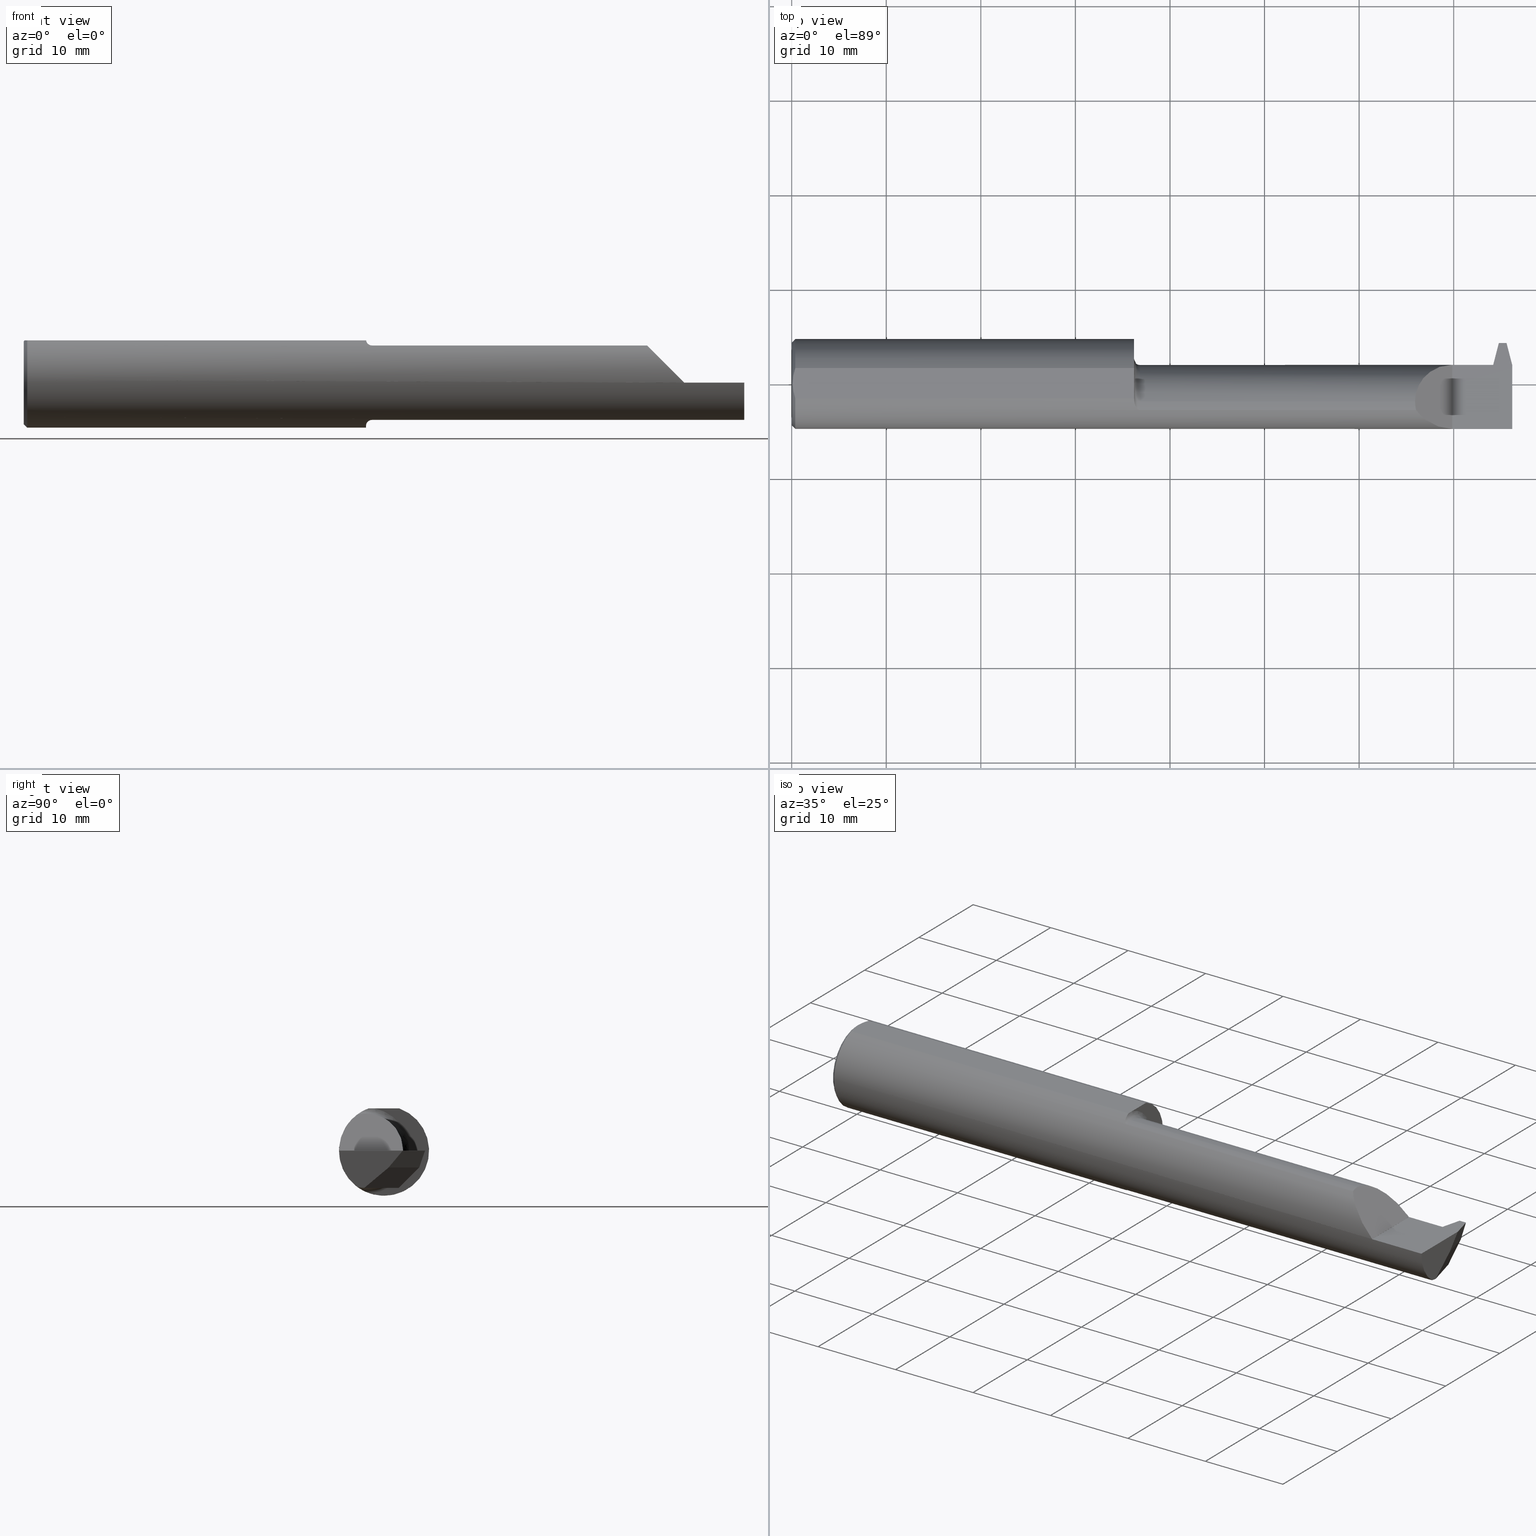
[diagram: canonical four-view strip — front | top / right | iso, engineering-drawing reading convention]
A machine part, canonical four-view strip (front | top / right | iso — engineering-drawing reading convention). The complete STEP part file that produces these views, byte-faithful:
ISO-10303-21;
HEADER;
FILE_DESCRIPTION (( 'STEP AP203' ),
    '1' );
FILE_NAME ('231033-FAT3601500-10.STEP',
    '2024-05-23T22:18:17',
    ( '' ),
    ( '' ),
    'SwSTEP 2.0',
    'SolidWorks 2022',
    '' );
FILE_SCHEMA (( 'CONFIG_CONTROL_DESIGN' ));
ENDSEC;

DATA;
#1 = CARTESIAN_POINT ( 'NONE',  ( 2.931847974081299046, 0.06494971824451307996, -0.06999999999999206857 ) ) ;
#2 = ORIENTED_EDGE ( 'NONE', *, *, #172, .F. ) ;
#3 = ADVANCED_FACE ( 'NONE', ( #4 ), #915, .F. ) ;
#4 = FACE_OUTER_BOUND ( 'NONE', #636, .T. ) ;
#5 = ORIENTED_EDGE ( 'NONE', *, *, #386, .F. ) ;
#6 = DIRECTION ( 'NONE',  ( -0.000000000000000000, 5.672820889749761672E-16, 1.000000000000000000 ) ) ;
#7 = EDGE_CURVE ( 'NONE', #30, #755, #741, .T. ) ;
#8 = ORIENTED_EDGE ( 'NONE', *, *, #612, .T. ) ;
#9 = EDGE_LOOP ( 'NONE', ( #522, #560, #322, #256, #431, #680, #191, #383 ) ) ;
#10 = CARTESIAN_POINT ( 'NONE',  ( 1.425000000000000266, 0.07964999999999992919, -4.469813191451678053E-17 ) ) ;
#11 = CYLINDRICAL_SURFACE ( 'NONE', #20, 0.1549999999999999989 ) ;
#12 = ORIENTED_EDGE ( 'NONE', *, *, #576, .F. ) ;
#13 = EDGE_LOOP ( 'NONE', ( #911, #196, #510 ) ) ;
#14 = DIRECTION ( 'NONE',  ( 0.000000000000000000, 0.000000000000000000, -1.000000000000000000 ) ) ;
#15 = CARTESIAN_POINT ( 'NONE',  ( 2.595350000000000268, 0.01528441802401224632, 0.1549999999999999989 ) ) ;
#16 = ORIENTED_EDGE ( 'NONE', *, *, #739, .F. ) ;
#17 = VECTOR ( 'NONE', #641, 39.37007874015748854 ) ;
#18 = CIRCLE ( 'NONE', #151, 0.1549999999999999989 ) ;
#19 = FACE_OUTER_BOUND ( 'NONE', #772, .T. ) ;
#20 = AXIS2_PLACEMENT_3D ( 'NONE', #940, #626, #250 ) ;
#21 = EDGE_CURVE ( 'NONE', #40, #222, #655, .T. ) ;
#22 = CARTESIAN_POINT ( 'NONE',  ( 2.919999999999999485, 0.06139050547019519327, -0.07298653412620365044 ) ) ;
#23 = CARTESIAN_POINT ( 'NONE',  ( 2.910465799823616972, 0.07964999999999992919, 0.000000000000000000 ) ) ;
#24 = ORIENTED_EDGE ( 'NONE', *, *, #65, .F. ) ;
#25 = CARTESIAN_POINT ( 'NONE',  ( 2.959999999999999520, 0.1738055255122809839, -0.06999999999999206857 ) ) ;
#26 = EDGE_CURVE ( 'NONE', #222, #40, #729, .T. ) ;
#27 = CARTESIAN_POINT ( 'NONE',  ( 1.450000000000000178, -0.1111655275381552704, -0.1508053314281814217 ) ) ;
#28 = DIRECTION ( 'NONE',  ( 0.000000000000000000, -0.7660444431189792347, -0.6427876096865379196 ) ) ;
#29 = APPROVAL ( #141, 'UNSPECIFIED' ) ;
#30 = VERTEX_POINT ( 'NONE', #695 ) ;
#31 = CARTESIAN_POINT ( 'NONE',  ( 2.931847974081299046, 0.06494971824451307996, -0.06999999999999206857 ) ) ;
#32 = CARTESIAN_POINT ( 'NONE',  ( 2.750000000000000444, 0.2000000000000000111, 0.0003499999999995605151 ) ) ;
#33 = PLANE ( 'NONE',  #842 ) ;
#34 = ORIENTED_EDGE ( 'NONE', *, *, #564, .T. ) ;
#35 = CARTESIAN_POINT ( 'NONE',  ( 2.975314547023542033, 0.1733004499999999115, 0.000000000000000000 ) ) ;
#36 = CARTESIAN_POINT ( 'NONE',  ( 2.750000000000000444, -0.07535000000000005582, 0.000000000000000000 ) ) ;
#37 = VECTOR ( 'NONE', #549, 39.37007874015748143 ) ;
#38 = CARTESIAN_POINT ( 'NONE',  ( 3.000000000000000444, 0.07784888572241947802, 0.000000000000000000 ) ) ;
#39 = AXIS2_PLACEMENT_3D ( 'NONE', #783, #477, #629 ) ;
#40 = VERTEX_POINT ( 'NONE', #941 ) ;
#41 = CARTESIAN_POINT ( 'NONE',  ( 2.750000000000000444, 0.000000000000000000, 0.000000000000000000 ) ) ;
#42 = CARTESIAN_POINT ( 'NONE',  ( 2.750000000000000444, -0.1873496730715054903, 0.0003499999999995605151 ) ) ;
#43 = CC_DESIGN_DATE_AND_TIME_ASSIGNMENT ( #968, #526, ( #356 ) ) ;
#44 = CARTESIAN_POINT ( 'NONE',  ( 2.897371745677377319, 0.06655594585375997074, -0.06235144369900125216 ) ) ;
#45 = DATE_AND_TIME ( #887, #334 ) ;
#46 = EDGE_LOOP ( 'NONE', ( #476, #926, #763, #946, #843, #685, #187, #140, #903, #776, #109, #464, #247 ) ) ;
#47 = LINE ( 'NONE', #344, #970 ) ;
#48 = DIRECTION ( 'NONE',  ( -0.1200238624775782498, 0.3232146245633336079, 0.9386834284807347162 ) ) ;
#49 = ADVANCED_FACE ( 'NONE', ( #631 ), #265, .F. ) ;
#50 = DIRECTION ( 'NONE',  ( 0.03504448777032791174, 0.7066724431718361954, 0.7066724431718439670 ) ) ;
#51 = DATE_AND_TIME ( #814, #157 ) ;
#52 = VERTEX_POINT ( 'NONE', #333 ) ;
#53 = FACE_OUTER_BOUND ( 'NONE', #828, .T. ) ;
#54 = ADVANCED_FACE ( 'NONE', ( #559 ), #33, .F. ) ;
#55 = VERTEX_POINT ( 'NONE', #936 ) ;
#56 = CARTESIAN_POINT ( 'NONE',  ( 2.998238283139452953, -0.07534999999999998643, -0.1549999999999999156 ) ) ;
#57 = VECTOR ( 'NONE', #168, 39.37007874015749564 ) ;
#58 = ORIENTED_EDGE ( 'NONE', *, *, #551, .T. ) ;
#59 =( NAMED_UNIT ( * ) SI_UNIT ( $, .STERADIAN. ) SOLID_ANGLE_UNIT ( ) );
#60 = APPROVAL ( #292, 'UNSPECIFIED' ) ;
#61 = LINE ( 'NONE', #665, #930 ) ;
#62 = PERSON ( 'UNSPECIFIED', 'UNSPECIFIED', 'UNSPECIFIED', ('UNSPECIFIED'), ('UNSPECIFIED'), ('UNSPECIFIED') ) ;
#63 = ORIENTED_EDGE ( 'NONE', *, *, #697, .F. ) ;
#64 = DIRECTION ( 'NONE',  ( 0.000000000000000000, 1.000000000000000000, -1.224646799147353207E-16 ) ) ;
#65 = EDGE_CURVE ( 'NONE', #357, #215, #554, .T. ) ;
#66 = ORIENTED_EDGE ( 'NONE', *, *, #85, .T. ) ;
#67 = CC_DESIGN_APPROVAL ( #60, ( #356 ) ) ;
#68 = CIRCLE ( 'NONE', #884, 0.1549999999999999989 ) ;
#69 = CIRCLE ( 'NONE', #422, 0.02500000000000000486 ) ;
#70 = EDGE_LOOP ( 'NONE', ( #950, #162 ) ) ;
#71 = VERTEX_POINT ( 'NONE', #788 ) ;
#72 = PERSON_AND_ORGANIZATION_ROLE ( 'creator' ) ;
#73 = CARTESIAN_POINT ( 'NONE',  ( 1.426478687487613639, -0.07534999999999995868, 0.1715295892841815495 ) ) ;
#74 = AXIS2_PLACEMENT_3D ( 'NONE', #95, #562, #406 ) ;
#75 = CARTESIAN_POINT ( 'NONE',  ( 3.000000000000000444, -0.08199235869079647687, -0.1548576090188105714 ) ) ;
#76 = EDGE_CURVE ( 'NONE', #222, #81, #482, .T. ) ;
#77 = APPROVAL_PERSON_ORGANIZATION ( #280, #460, #736 ) ;
#78 = ORIENTED_EDGE ( 'NONE', *, *, #792, .F. ) ;
#79 = CARTESIAN_POINT ( 'NONE',  ( 1.426478687487605646, -0.07534999999994894393, -0.1715295892842039482 ) ) ;
#80 = CARTESIAN_POINT ( 'NONE',  ( 1.450000000000000178, -0.1111655275381552704, 0.1508053314281814217 ) ) ;
#81 = VERTEX_POINT ( 'NONE', #186 ) ;
#82 = EDGE_CURVE ( 'NONE', #737, #663, #784, .T. ) ;
#83 = VERTEX_POINT ( 'NONE', #488 ) ;
#84 = PLANE ( 'NONE',  #532 ) ;
#85 = EDGE_CURVE ( 'NONE', #566, #607, #687, .T. ) ;
#86 = DIRECTION ( 'NONE',  ( -1.000000000000000000, -0.000000000000000000, -0.000000000000000000 ) ) ;
#87 = FACE_OUTER_BOUND ( 'NONE', #171, .T. ) ;
#88 = CARTESIAN_POINT ( 'NONE',  ( 0.008096539338611864062, -0.04280300585742020242, 0.1763499999999999790 ) ) ;
#89 = ORIENTED_EDGE ( 'NONE', *, *, #807, .T. ) ;
#90 = CARTESIAN_POINT ( 'NONE',  ( 2.919999999999999929, -0.02721703491517946799, -0.1473370885830972143 ) ) ;
#91 = EDGE_CURVE ( 'NONE', #71, #117, #102, .T. ) ;
#92 = PLANE ( 'NONE',  #803 ) ;
#93 = ORIENTED_EDGE ( 'NONE', *, *, #279, .F. ) ;
#94 =( BOUNDED_CURVE ( )  B_SPLINE_CURVE ( 3, ( #56, #511, #876, #947 ),
 .UNSPECIFIED., .F., .F. ) 
 B_SPLINE_CURVE_WITH_KNOTS ( ( 4, 4 ),
 ( 0.6981317007977293487, 0.7409987552670644906 ),
 .UNSPECIFIED. ) 
 CURVE ( )  GEOMETRIC_REPRESENTATION_ITEM ( )  RATIONAL_B_SPLINE_CURVE ( ( 1.000000000000000000, 0.9998468738323584848, 0.9998468738323584848, 1.000000000000000000 ) ) 
 REPRESENTATION_ITEM ( '' )  );
#95 = CARTESIAN_POINT ( 'NONE',  ( 0.01500000000000407431, 0.000000000000000000, 0.000000000000000000 ) ) ;
#96 = EDGE_CURVE ( 'NONE', #55, #52, #782, .T. ) ;
#97 = CARTESIAN_POINT ( 'NONE',  ( 3.000000000000000444, 0.06154706706971600771, -0.1549999999999999989 ) ) ;
#98 = DIRECTION ( 'NONE',  ( 0.7071067811865499042, 0.000000000000000000, -0.7071067811865451302 ) ) ;
#99 = AXIS2_PLACEMENT_3D ( 'NONE', #315, #627, #919 ) ;
#100 = VECTOR ( 'NONE', #648, 39.37007874015748854 ) ;
#101 = CARTESIAN_POINT ( 'NONE',  ( 1.431253303781169883, -0.09363708362384969008, 0.1623181733163006346 ) ) ;
#102 = CIRCLE ( 'NONE', #184, 0.1549999999999999989 ) ;
#103 = CARTESIAN_POINT ( 'NONE',  ( 3.000000000000000444, 0.06325108694718233060, 0.1763499999999999235 ) ) ;
#104 = CARTESIAN_POINT ( 'NONE',  ( 0.004000000000004001223, 2.159664630174422375E-17, 0.1763499999999999790 ) ) ;
#105 = EDGE_LOOP ( 'NONE', ( #78, #689, #606, #210, #320, #584 ) ) ;
#106 = DIRECTION ( 'NONE',  ( 1.000000000000000000, 0.000000000000000000, 0.000000000000000000 ) ) ;
#107 = LINE ( 'NONE', #97, #530 ) ;
#108 = CARTESIAN_POINT ( 'NONE',  ( 1.425439896557285868, -0.06737885671737312010, 0.1748695014197204356 ) ) ;
#109 = ORIENTED_EDGE ( 'NONE', *, *, #439, .T. ) ;
#110 = ADVANCED_FACE ( 'NONE', ( #600 ), #459, .T. ) ;
#111 = CARTESIAN_POINT ( 'NONE',  ( 2.910128569999999470, 0.1055363691085620947, -0.1891037151198610156 ) ) ;
#112 = CARTESIAN_POINT ( 'NONE',  ( 1.447840824787755443, -0.1111655275381552704, 0.1508053314281814494 ) ) ;
#113 = APPLICATION_CONTEXT ( 'configuration controlled 3d designs of mechanical parts and assemblies' ) ;
#114 = LINE ( 'NONE', #563, #623 ) ;
#115 = ORIENTED_EDGE ( 'NONE', *, *, #537, .T. ) ;
#116 = VECTOR ( 'NONE', #889, 39.37007874015748143 ) ;
#117 = VERTEX_POINT ( 'NONE', #80 ) ;
#118 = FACE_OUTER_BOUND ( 'NONE', #888, .T. ) ;
#119 = CC_DESIGN_DATE_AND_TIME_ASSIGNMENT ( #45, #659, ( #274 ) ) ;
#120 = DIRECTION ( 'NONE',  ( 1.000000000000000000, 0.000000000000000000, 0.000000000000000000 ) ) ;
#121 = AXIS2_PLACEMENT_3D ( 'NONE', #962, #969, #904 ) ;
#122 = CARTESIAN_POINT ( 'NONE',  ( 3.000000000000000444, 0.000000000000000000, 0.000000000000000000 ) ) ;
#123 = AXIS2_PLACEMENT_3D ( 'NONE', #791, #797, #412 ) ;
#124 = EDGE_LOOP ( 'NONE', ( #917, #656, #366, #769, #470 ) ) ;
#125 = DIRECTION ( 'NONE',  ( 1.000000000000000000, 0.000000000000000000, 0.000000000000000000 ) ) ;
#126 = CARTESIAN_POINT ( 'NONE',  ( 1.425000000000000266, 0.06655594585375997074, -0.06235144369900125216 ) ) ;
#127 = CARTESIAN_POINT ( 'NONE',  ( 2.954573341866507885, 0.09348980020807252933, -0.1550000000000000266 ) ) ;
#128 = VERTEX_POINT ( 'NONE', #388 ) ;
#129 = CARTESIAN_POINT ( 'NONE',  ( 1.425000000000000266, 0.06139050547019519327, -0.07298653412620365044 ) ) ;
#130 = ADVANCED_FACE ( 'NONE', ( #848 ), #909, .T. ) ;
#131 = LINE ( 'NONE', #819, #199 ) ;
#132 = ORIENTED_EDGE ( 'NONE', *, *, #576, .T. ) ;
#133 = LENGTH_MEASURE_WITH_UNIT ( LENGTH_MEASURE( 0.02539999999999999897 ), #432 );
#134 = CARTESIAN_POINT ( 'NONE',  ( 2.931847974081299046, 0.06494971824451307996, -0.06999999999999206857 ) ) ;
#135 = CC_DESIGN_PERSON_AND_ORGANIZATION_ASSIGNMENT ( #742, #730, ( #274 ) ) ;
#136 = ORIENTED_EDGE ( 'NONE', *, *, #248, .T. ) ;
#137 = PERSON_AND_ORGANIZATION ( #62, #324 ) ;
#138 = FACE_OUTER_BOUND ( 'NONE', #748, .T. ) ;
#139 = CC_DESIGN_APPROVAL ( #460, ( #274 ) ) ;
#140 = ORIENTED_EDGE ( 'NONE', *, *, #717, .F. ) ;
#141 = APPROVAL_STATUS ( 'not_yet_approved' ) ;
#142 = LINE ( 'NONE', #226, #670 ) ;
#143 = EDGE_CURVE ( 'NONE', #516, #826, #240, .T. ) ;
#144 = ORIENTED_EDGE ( 'NONE', *, *, #697, .T. ) ;
#145 = DIRECTION ( 'NONE',  ( 1.000000000000000000, 0.000000000000000000, 0.000000000000000000 ) ) ;
#146 = LINE ( 'NONE', #753, #375 ) ;
#147 = PRODUCT_RELATED_PRODUCT_CATEGORY ( 'detail', '', ( #161 ) ) ;
#148 = DIRECTION ( 'NONE',  ( -1.000000000000000000, 1.715790115436519060E-14, 0.000000000000000000 ) ) ;
#149 = LOCAL_TIME ( 15, 18, 17.00000000000000000, #980 ) ;
#150 = ORIENTED_EDGE ( 'NONE', *, *, #408, .T. ) ;
#151 = AXIS2_PLACEMENT_3D ( 'NONE', #639, #885, #202 ) ;
#152 = DIRECTION ( 'NONE',  ( 0.000000000000000000, -0.2055210070593990190, -0.9786527043120508695 ) ) ;
#153 = CARTESIAN_POINT ( 'NONE',  ( 2.919999999999999485, -0.03634933712600452865, -0.1549999999999999434 ) ) ;
#154 = ADVANCED_FACE ( 'NONE', ( #159 ), #692, .F. ) ;
#155 = VECTOR ( 'NONE', #98, 39.37007874015748143 ) ;
#156 = DIRECTION ( 'NONE',  ( -1.000000000000000000, -0.000000000000000000, -0.000000000000000000 ) ) ;
#157 = LOCAL_TIME ( 15, 18, 17.00000000000000000, #209 ) ;
#158 = ORIENTED_EDGE ( 'NONE', *, *, #734, .T. ) ;
#159 = FACE_OUTER_BOUND ( 'NONE', #105, .T. ) ;
#160 = ADVANCED_FACE ( 'NONE', ( #385 ), #407, .F. ) ;
#161 = PRODUCT ( '231033-FAT3601500-10', '231033-FAT3601500-10', '', ( #668 ) ) ;
#162 = ORIENTED_EDGE ( 'NONE', *, *, #959, .F. ) ;
#163 = DIRECTION ( 'NONE',  ( 1.000000000000000000, 0.000000000000000000, 0.000000000000000000 ) ) ;
#164 = DIRECTION ( 'NONE',  ( 0.000000000000000000, 1.762482576557589218E-15, -1.000000000000000000 ) ) ;
#165 = ORIENTED_EDGE ( 'NONE', *, *, #902, .T. ) ;
#166 = ORIENTED_EDGE ( 'NONE', *, *, #386, .T. ) ;
#167 = AXIS2_PLACEMENT_3D ( 'NONE', #438, #433, #290 ) ;
#168 = DIRECTION ( 'NONE',  ( 0.2503800040544430505, 0.9681476403781072992, 0.000000000000000000 ) ) ;
#169 = CONICAL_SURFACE ( 'NONE', #503, 0.1873499999999999888, 0.7853981633974449483 ) ;
#170 = DIRECTION ( 'NONE',  ( 0.000000000000000000, -0.7660444431189792347, -0.6427876096865379196 ) ) ;
#171 = EDGE_LOOP ( 'NONE', ( #440, #471, #821, #276, #671, #16, #982 ) ) ;
#172 = EDGE_CURVE ( 'NONE', #40, #663, #977, .T. ) ;
#173 = CARTESIAN_POINT ( 'NONE',  ( 1.434555280550786849, -0.1002805646452517713, 0.1583000352897937224 ) ) ;
#174 =( BOUNDED_CURVE ( )  B_SPLINE_CURVE ( 3, ( #608, #310, #916, #534 ),
 .UNSPECIFIED., .F., .T. ) 
 B_SPLINE_CURVE_WITH_KNOTS ( ( 4, 4 ),
 ( 0.000000000000000000, 0.2331751639699407574 ),
 .UNSPECIFIED. ) 
 CURVE ( )  GEOMETRIC_REPRESENTATION_ITEM ( )  RATIONAL_B_SPLINE_CURVE ( ( 1.000000000000000000, 0.9954742418208946120, 0.9954742418208946120, 1.000000000000000000 ) ) 
 REPRESENTATION_ITEM ( '' )  );
#175 = DIRECTION ( 'NONE',  ( 1.000000000000000000, 0.000000000000000000, 0.000000000000000000 ) ) ;
#176 = DIRECTION ( 'NONE',  ( 0.000000000000000000, 0.000000000000000000, -1.000000000000000000 ) ) ;
#177 = CARTESIAN_POINT ( 'NONE',  ( 1.450000000000000178, -0.1111655275381552704, 0.1508053314281814217 ) ) ;
#178 = CC_DESIGN_PERSON_AND_ORGANIZATION_ASSIGNMENT ( #764, #752, ( #622 ) ) ;
#179 = CARTESIAN_POINT ( 'NONE',  ( 1.447842917297106791, -0.1111655275381357721, -0.1508053314282012947 ) ) ;
#180 = CARTESIAN_POINT ( 'NONE',  ( 0.008079618022133900831, 0.04275288484297749131, 0.1763499999999999790 ) ) ;
#181 = VERTEX_POINT ( 'NONE', #75 ) ;
#182 = DIRECTION ( 'NONE',  ( 0.000000000000000000, 0.000000000000000000, 1.000000000000000000 ) ) ;
#183 = ADVANCED_FACE ( 'NONE', ( #227 ), #84, .T. ) ;
#184 = AXIS2_PLACEMENT_3D ( 'NONE', #414, #338, #176 ) ;
#185 = DIRECTION ( 'NONE',  ( 0.000000000000000000, -1.000000000000000000, 0.000000000000000000 ) ) ;
#186 = CARTESIAN_POINT ( 'NONE',  ( 0.01500000000000407431, 0.000000000000000000, -0.1873499999999999888 ) ) ;
#187 = ORIENTED_EDGE ( 'NONE', *, *, #221, .T. ) ;
#188 = DIRECTION ( 'NONE',  ( -1.000000000000000000, -0.000000000000000000, -0.000000000000000000 ) ) ;
#189 = CARTESIAN_POINT ( 'NONE',  ( 1.425000000000000266, -0.07535000000000005582, 0.000000000000000000 ) ) ;
#190 = CARTESIAN_POINT ( 'NONE',  ( 2.970434268414135381, 0.2148006194178345429, -0.001746447651879753015 ) ) ;
#191 = ORIENTED_EDGE ( 'NONE', *, *, #397, .T. ) ;
#192 = PLANE ( 'NONE',  #249 ) ;
#193 = CARTESIAN_POINT ( 'NONE',  ( 2.916847974081298478, 0.06139050547019519327, -0.07298653412620366432 ) ) ;
#194 = CARTESIAN_POINT ( 'NONE',  ( 1.425138881465989549, -0.05526243373525235175, 0.1763499999999999790 ) ) ;
#195 = VECTOR ( 'NONE', #416, 39.37007874015748143 ) ;
#196 = ORIENTED_EDGE ( 'NONE', *, *, #473, .T. ) ;
#197 = LINE ( 'NONE', #353, #17 ) ;
#198 = CARTESIAN_POINT ( 'NONE',  ( 2.897371745677377319, 0.06655594585375997074, -0.06235144369900125216 ) ) ;
#199 = VECTOR ( 'NONE', #426, 39.37007874015748143 ) ;
#200 = AXIS2_PLACEMENT_3D ( 'NONE', #246, #539, #850 ) ;
#201 = VECTOR ( 'NONE', #832, 39.37007874015748143 ) ;
#202 = DIRECTION ( 'NONE',  ( 0.000000000000000000, 0.000000000000000000, 1.000000000000000000 ) ) ;
#203 = VECTOR ( 'NONE', #495, 39.37007874015748143 ) ;
#204 = VERTEX_POINT ( 'NONE', #682 ) ;
#205 = FACE_OUTER_BOUND ( 'NONE', #281, .T. ) ;
#206 = B_SPLINE_CURVE_WITH_KNOTS ( 'NONE', 3,
 ( #949, #194, #582, #497 ),
 .UNSPECIFIED., .F., .F.,
 ( 4, 4 ),
 ( 4.553649124439118623E-18, 0.0006087596641710207564 ),
 .UNSPECIFIED. ) ;
#207 = PLANE ( 'NONE',  #235 ) ;
#208 = ORIENTED_EDGE ( 'NONE', *, *, #21, .T. ) ;
#209 = COORDINATED_UNIVERSAL_TIME_OFFSET ( 8, 0, .BEHIND. ) ;
#210 = ORIENTED_EDGE ( 'NONE', *, *, #704, .F. ) ;
#211 = LINE ( 'NONE', #289, #851 ) ;
#212 = DIRECTION ( 'NONE',  ( 0.000000000000000000, 0.000000000000000000, -1.000000000000000000 ) ) ;
#213 = CC_DESIGN_PERSON_AND_ORGANIZATION_ASSIGNMENT ( #602, #72, ( #356 ) ) ;
#214 = COORDINATED_UNIVERSAL_TIME_OFFSET ( 8, 0, .BEHIND. ) ;
#215 = VERTEX_POINT ( 'NONE', #524 ) ;
#216 = APPLICATION_PROTOCOL_DEFINITION ( 'international standard', 'config_control_design', 1994, #618 ) ;
#217 = CARTESIAN_POINT ( 'NONE',  ( 2.635462471271804219, -0.1598910295916960156, 0.1148875287281957286 ) ) ;
#218 = ADVANCED_BREP_SHAPE_REPRESENTATION ( '231033-FAT3601500-10', ( #617, #574 ), #371 ) ;
#219 = ORIENTED_EDGE ( 'NONE', *, *, #740, .T. ) ;
#220 = DIRECTION ( 'NONE',  ( 0.000000000000000000, -0.7660444431189792347, -0.6427876096865379196 ) ) ;
#221 = EDGE_CURVE ( 'NONE', #266, #241, #920, .T. ) ;
#222 = VERTEX_POINT ( 'NONE', #319 ) ;
#223 = EDGE_CURVE ( 'NONE', #357, #128, #474, .T. ) ;
#224 = ORIENTED_EDGE ( 'NONE', *, *, #901, .T. ) ;
#225 = COORDINATED_UNIVERSAL_TIME_OFFSET ( 8, 0, .BEHIND. ) ;
#226 = CARTESIAN_POINT ( 'NONE',  ( 3.000000000000000444, -0.1873499999999999610, -4.469813191451678053E-17 ) ) ;
#227 = FACE_OUTER_BOUND ( 'NONE', #421, .T. ) ;
#228 = EDGE_CURVE ( 'NONE', #340, #314, #174, .T. ) ;
#229 = ORIENTED_EDGE ( 'NONE', *, *, #486, .T. ) ;
#230 = EDGE_LOOP ( 'NONE', ( #229, #790, #343, #677, #251, #938, #520, #857 ) ) ;
#231 = PERSON_AND_ORGANIZATION ( #62, #324 ) ;
#232 = DIRECTION ( 'NONE',  ( -1.000000000000000000, -0.000000000000000000, -0.000000000000000000 ) ) ;
#233 = DIRECTION ( 'NONE',  ( 0.000000000000000000, 0.000000000000000000, -1.000000000000000000 ) ) ;
#234 = AXIS2_PLACEMENT_3D ( 'NONE', #933, #86, #390 ) ;
#235 = AXIS2_PLACEMENT_3D ( 'NONE', #509, #945, #492 ) ;
#236 = B_SPLINE_CURVE_WITH_KNOTS ( 'NONE', 3,
 ( #177, #112, #253, #268, #336, #862, #173, #101, #491, #257, #866, #568 ),
 .UNSPECIFIED., .F., .F.,
 ( 4, 2, 2, 2, 2, 4 ),
 ( 0.000000000000000000, 0.0001618095382700048305, 0.0003236190765400096610, 0.0006472381530800058779, 0.0009708572296200021490, 0.001294476306159998312 ),
 .UNSPECIFIED. ) ;
#237 = VERTEX_POINT ( 'NONE', #604 ) ;
#238 = ADVANCED_FACE ( 'NONE', ( #616 ), #313, .F. ) ;
#239 = AXIS2_PLACEMENT_3D ( 'NONE', #770, #6, #777 ) ;
#240 = LINE ( 'NONE', #462, #707 ) ;
#241 = VERTEX_POINT ( 'NONE', #773 ) ;
#242 = VERTEX_POINT ( 'NONE', #924 ) ;
#243 = DIRECTION ( 'NONE',  ( -0.7071067811865465735, 0.000000000000000000, 0.7071067811865483499 ) ) ;
#244 = ADVANCED_FACE ( 'NONE', ( #87 ), #789, .F. ) ;
#245 = LINE ( 'NONE', #544, #403 ) ;
#246 = CARTESIAN_POINT ( 'NONE',  ( 0.000000000000000000, 0.000000000000000000, 0.000000000000000000 ) ) ;
#247 = ORIENTED_EDGE ( 'NONE', *, *, #624, .T. ) ;
#248 = EDGE_CURVE ( 'NONE', #674, #52, #541, .T. ) ;
#249 = AXIS2_PLACEMENT_3D ( 'NONE', #423, #125, #428 ) ;
#250 = DIRECTION ( 'NONE',  ( 0.000000000000000000, 0.000000000000000000, 1.000000000000000000 ) ) ;
#251 = ORIENTED_EDGE ( 'NONE', *, *, #624, .F. ) ;
#252 = VECTOR ( 'NONE', #445, 39.37007874015748143 ) ;
#253 = CARTESIAN_POINT ( 'NONE',  ( 1.445768331180431909, -0.1105668026956975053, 0.1512491196838317009 ) ) ;
#254 = AXIS2_PLACEMENT_3D ( 'NONE', #25, #552, #858 ) ;
#255 = LINE ( 'NONE', #32, #453 ) ;
#256 = ORIENTED_EDGE ( 'NONE', *, *, #221, .F. ) ;
#257 = CARTESIAN_POINT ( 'NONE',  ( 1.427871177471789155, -0.08285827945689645813, 0.1680807655869951678 ) ) ;
#258 = DIRECTION ( 'NONE',  ( 1.000000000000000000, -0.000000000000000000, -0.000000000000000000 ) ) ;
#259 = DIRECTION ( 'NONE',  ( -1.000000000000000000, 0.000000000000000000, 0.000000000000000000 ) ) ;
#260 = EDGE_CURVE ( 'NONE', #237, #266, #746, .T. ) ;
#261 = ORIENTED_EDGE ( 'NONE', *, *, #807, .F. ) ;
#262 = CARTESIAN_POINT ( 'NONE',  ( 2.919999999999999485, 0.1080444690466952351, -0.03383921049620436383 ) ) ;
#263 = ADVANCED_FACE ( 'NONE', ( #934 ), #425, .T. ) ;
#264 = DIRECTION ( 'NONE',  ( -1.000000000000000000, -0.000000000000000000, -0.000000000000000000 ) ) ;
#265 = PLANE ( 'NONE',  #286 ) ;
#266 = VERTEX_POINT ( 'NONE', #709 ) ;
#267 = DIRECTION ( 'NONE',  ( 0.000000000000000000, -0.3255681544571566999, -0.9455185755993168462 ) ) ;
#268 = CARTESIAN_POINT ( 'NONE',  ( 1.442178388317598703, -0.1087237717143362814, 0.1525793417461623891 ) ) ;
#269 = ADVANCED_FACE ( 'NONE', ( #323 ), #637, .T. ) ;
#270 = LINE ( 'NONE', #127, #957 ) ;
#271 = VERTEX_POINT ( 'NONE', #328 ) ;
#272 = DIRECTION ( 'NONE',  ( 1.000000000000000000, -0.000000000000000000, -0.000000000000000000 ) ) ;
#273 = DIRECTION ( 'NONE',  ( 0.000000000000000000, 0.000000000000000000, -1.000000000000000000 ) ) ;
#274 = SECURITY_CLASSIFICATION ( '', '', #297 ) ;
#275 = DIRECTION ( 'NONE',  ( 1.000000000000000000, 0.000000000000000000, 0.000000000000000000 ) ) ;
#276 = ORIENTED_EDGE ( 'NONE', *, *, #551, .F. ) ;
#277 = PLANE ( 'NONE',  #883 ) ;
#278 = DIRECTION ( 'NONE',  ( -0.2945363905204741450, 0.000000000000000000, 0.9556402642517584090 ) ) ;
#279 = EDGE_CURVE ( 'NONE', #875, #242, #628, .T. ) ;
#280 = PERSON_AND_ORGANIZATION ( #62, #324 ) ;
#281 = EDGE_LOOP ( 'NONE', ( #415, #208 ) ) ;
#282 = CARTESIAN_POINT ( 'NONE',  ( 2.919999999999999485, 0.1080444690466952351, -0.03383921049620436383 ) ) ;
#283 = LINE ( 'NONE', #733, #727 ) ;
#284 = VECTOR ( 'NONE', #50, 39.37007874015748854 ) ;
#285 = FACE_OUTER_BOUND ( 'NONE', #363, .T. ) ;
#286 = AXIS2_PLACEMENT_3D ( 'NONE', #23, #635, #706 ) ;
#287 = APPROVAL_STATUS ( 'not_yet_approved' ) ;
#288 = EDGE_LOOP ( 'NONE', ( #411, #446, #571, #374 ) ) ;
#289 = CARTESIAN_POINT ( 'NONE',  ( 2.910128570000003911, 0.1465470670697165967, -0.06999999999999845235 ) ) ;
#290 = DIRECTION ( 'NONE',  ( 0.000000000000000000, 0.000000000000000000, -1.000000000000000000 ) ) ;
#291 = ORIENTED_EDGE ( 'NONE', *, *, #739, .T. ) ;
#292 = APPROVAL_STATUS ( 'not_yet_approved' ) ;
#293 = DIRECTION ( 'NONE',  ( 0.9474803064293683130, -0.2450350680735326470, 0.2055210070593990190 ) ) ;
#294 = EDGE_CURVE ( 'NONE', #436, #204, #774, .T. ) ;
#295 = ORIENTED_EDGE ( 'NONE', *, *, #518, .F. ) ;
#296 = ORIENTED_EDGE ( 'NONE', *, *, #867, .T. ) ;
#297 = SECURITY_CLASSIFICATION_LEVEL ( 'unclassified' ) ;
#298 = EDGE_CURVE ( 'NONE', #30, #71, #854, .T. ) ;
#299 = LOCAL_TIME ( 15, 18, 17.00000000000000000, #912 ) ;
#300 = VECTOR ( 'NONE', #120, 39.37007874015748143 ) ;
#301 = VECTOR ( 'NONE', #801, 39.37007874015748143 ) ;
#302 = ORIENTED_EDGE ( 'NONE', *, *, #7, .F. ) ;
#303 = DIRECTION ( 'NONE',  ( 0.000000000000000000, 0.000000000000000000, 1.000000000000000000 ) ) ;
#304 = DIRECTION ( 'NONE',  ( -0.000000000000000000, 0.000000000000000000, 1.000000000000000000 ) ) ;
#305 = B_SPLINE_CURVE_WITH_KNOTS ( 'NONE', 3,
 ( #715, #469, #88, #538 ),
 .UNSPECIFIED., .F., .F.,
 ( 4, 4 ),
 ( 0.005496776235116828009, 0.007121625476792210231 ),
 .UNSPECIFIED. ) ;
#306 = DIRECTION ( 'NONE',  ( 1.000000000000000000, 0.000000000000000000, 0.000000000000000000 ) ) ;
#307 = ORIENTED_EDGE ( 'NONE', *, *, #401, .T. ) ;
#308 = PERSON_AND_ORGANIZATION ( #62, #324 ) ;
#309 = LINE ( 'NONE', #457, #252 ) ;
#310 = CARTESIAN_POINT ( 'NONE',  ( 2.595350000000000712, -0.08742475677085169428, 0.1549999999999999989 ) ) ;
#311 = EDGE_CURVE ( 'NONE', #117, #566, #236, .T. ) ;
#312 = ORIENTED_EDGE ( 'NONE', *, *, #96, .F. ) ;
#313 = PLANE ( 'NONE',  #891 ) ;
#314 = VERTEX_POINT ( 'NONE', #939 ) ;
#315 = CARTESIAN_POINT ( 'NONE',  ( 1.450000000000000178, -0.07535000000000005582, -0.1799999999999999933 ) ) ;
#316 = ORIENTED_EDGE ( 'NONE', *, *, #21, .F. ) ;
#317 = EDGE_CURVE ( 'NONE', #609, #679, #621, .T. ) ;
#318 = AXIS2_PLACEMENT_3D ( 'NONE', #852, #306, #914 ) ;
#319 = CARTESIAN_POINT ( 'NONE',  ( 0.000000000000000000, 0.000000000000000000, -0.1723499999999960064 ) ) ;
#320 = ORIENTED_EDGE ( 'NONE', *, *, #902, .F. ) ;
#321 = DIRECTION ( 'NONE',  ( 1.000000000000000000, 0.000000000000000000, 0.000000000000000000 ) ) ;
#322 = ORIENTED_EDGE ( 'NONE', *, *, #937, .F. ) ;
#323 = FACE_OUTER_BOUND ( 'NONE', #847, .T. ) ;
#324 = ORGANIZATION ( 'UNSPECIFIED', 'UNSPECIFIED', '' ) ;
#325 = AXIS2_PLACEMENT_3D ( 'NONE', #351, #644, #953 ) ;
#326 = CARTESIAN_POINT ( 'NONE',  ( 1.442175898121774935, -0.1087238381091981954, -0.1525793326322721355 ) ) ;
#327 = ORIENTED_EDGE ( 'NONE', *, *, #937, .T. ) ;
#328 = CARTESIAN_POINT ( 'NONE',  ( 2.919999999999999485, -0.07534999999999998643, -0.1549999999999999156 ) ) ;
#329 = AXIS2_PLACEMENT_3D ( 'NONE', #943, #633, #273 ) ;
#330 = VECTOR ( 'NONE', #321, 39.37007874015748143 ) ;
#331 = ADVANCED_FACE ( 'NONE', ( #400 ), #169, .T. ) ;
#332 = CARTESIAN_POINT ( 'NONE',  ( 1.440623984237019206, -0.1074936703607914934, -0.1534529456673628389 ) ) ;
#333 = CARTESIAN_POINT ( 'NONE',  ( 2.943999999999999950, 0.1706499999999920303, 0.000000000000000000 ) ) ;
#334 = LOCAL_TIME ( 15, 18, 17.00000000000000000, #214 ) ;
#335 = ORIENTED_EDGE ( 'NONE', *, *, #867, .F. ) ;
#336 = CARTESIAN_POINT ( 'NONE',  ( 1.440624326360086860, -0.1074933921529483000, 0.1534530870474000996 ) ) ;
#337 = LINE ( 'NONE', #103, #577 ) ;
#338 = DIRECTION ( 'NONE',  ( 1.000000000000000000, 0.000000000000000000, 0.000000000000000000 ) ) ;
#339 = ADVANCED_FACE ( 'NONE', ( #19 ), #929, .T. ) ;
#340 = VERTEX_POINT ( 'NONE', #484 ) ;
#341 = CARTESIAN_POINT ( 'NONE',  ( 2.944685452976458340, 0.1733004499999999115, 0.000000000000000000 ) ) ;
#342 = DIRECTION ( 'NONE',  ( -1.000000000000000000, -0.000000000000000000, -0.000000000000000000 ) ) ;
#343 = ORIENTED_EDGE ( 'NONE', *, *, #704, .T. ) ;
#344 = CARTESIAN_POINT ( 'NONE',  ( 2.919999999999999485, 0.07964999999999992919, 0.000000000000000000 ) ) ;
#345 = CARTESIAN_POINT ( 'NONE',  ( 3.000000000000000444, -0.07534999999999998643, -0.1549999999999999156 ) ) ;
#346 = CARTESIAN_POINT ( 'NONE',  ( 2.905941521078384771, 0.07964999999999992919, -0.02154377157077449340 ) ) ;
#347 = ORIENTED_EDGE ( 'NONE', *, *, #143, .T. ) ;
#348 = DIRECTION ( 'NONE',  ( -1.622311425974924979E-14, -0.9455185755993168462, 0.3255681544571566999 ) ) ;
#349 = DIRECTION ( 'NONE',  ( -0.9277270166603212020, 0.2399265199903908019, -0.2859332921571758890 ) ) ;
#350 = EDGE_CURVE ( 'NONE', #204, #181, #376, .T. ) ;
#351 = CARTESIAN_POINT ( 'NONE',  ( 2.750000000000000444, 0.2000000000000000111, -4.469813191451678053E-17 ) ) ;
#352 = ORIENTED_EDGE ( 'NONE', *, *, #840, .T. ) ;
#353 = CARTESIAN_POINT ( 'NONE',  ( 2.970441869847915140, 0.1128821850179269060, -0.1550000000000000266 ) ) ;
#354 = DIRECTION ( 'NONE',  ( 0.000000000000000000, 0.000000000000000000, -1.000000000000000000 ) ) ;
#355 = FACE_OUTER_BOUND ( 'NONE', #525, .T. ) ;
#356 = PRODUCT_DEFINITION ( 'UNKNOWN', '', #622, #463 ) ;
#357 = VERTEX_POINT ( 'NONE', #31 ) ;
#358 = CARTESIAN_POINT ( 'NONE',  ( 2.920465799823617203, 0.07964999999999992919, 0.000000000000000000 ) ) ;
#359 = CARTESIAN_POINT ( 'NONE',  ( 2.944685452976458340, 0.1733004499999999115, 0.000000000000000000 ) ) ;
#360 = VECTOR ( 'NONE', #812, 39.37007874015748143 ) ;
#361 = EDGE_CURVE ( 'NONE', #660, #271, #720, .T. ) ;
#362 = AXIS2_PLACEMENT_3D ( 'NONE', #372, #156, #451 ) ;
#363 = EDGE_LOOP ( 'NONE', ( #799, #335, #261, #673 ) ) ;
#364 = FACE_OUTER_BOUND ( 'NONE', #389, .T. ) ;
#365 = LINE ( 'NONE', #126, #301 ) ;
#366 = ORIENTED_EDGE ( 'NONE', *, *, #547, .F. ) ;
#367 = CARTESIAN_POINT ( 'NONE',  ( 0.000000000000000000, 0.000000000000000000, 0.000000000000000000 ) ) ;
#368 = ORIENTED_EDGE ( 'NONE', *, *, #878, .T. ) ;
#369 = APPROVAL_DATE_TIME ( #838, #29 ) ;
#370 = CARTESIAN_POINT ( 'NONE',  ( 1.426478687487605646, -0.07534999999994894393, -0.1715295892842039482 ) ) ;
#371 =( GEOMETRIC_REPRESENTATION_CONTEXT ( 3 ) GLOBAL_UNCERTAINTY_ASSIGNED_CONTEXT ( ( #690 ) ) GLOBAL_UNIT_ASSIGNED_CONTEXT ( ( #437, #899, #59 ) ) REPRESENTATION_CONTEXT ( 'NONE', 'WORKASPACE' ) );
#372 = CARTESIAN_POINT ( 'NONE',  ( 1.425000000000000266, -0.07535000000000005582, 0.000000000000000000 ) ) ;
#373 = CIRCLE ( 'NONE', #928, 0.1873499999999999888 ) ;
#374 = ORIENTED_EDGE ( 'NONE', *, *, #921, .T. ) ;
#375 = VECTOR ( 'NONE', #384, 39.37007874015748854 ) ;
#376 = CIRCLE ( 'NONE', #123, 0.1549999999999999434 ) ;
#377 = VERTEX_POINT ( 'NONE', #193 ) ;
#378 = ORIENTED_EDGE ( 'NONE', *, *, #897, .F. ) ;
#379 = CARTESIAN_POINT ( 'NONE',  ( 1.427076714346777742, -0.07913036352372354587, -0.1698689405721950929 ) ) ;
#380 = CARTESIAN_POINT ( 'NONE',  ( 1.450000000000000178, -0.07535000000000005582, 0.000000000000000000 ) ) ;
#381 = VERTEX_POINT ( 'NONE', #90 ) ;
#382 = EDGE_CURVE ( 'NONE', #910, #30, #905, .T. ) ;
#383 = ORIENTED_EDGE ( 'NONE', *, *, #710, .F. ) ;
#384 = DIRECTION ( 'NONE',  ( 0.000000000000000000, -0.6426264403010660820, -0.7661796514042775730 ) ) ;
#385 = FACE_OUTER_BOUND ( 'NONE', #880, .T. ) ;
#386 = EDGE_CURVE ( 'NONE', #128, #52, #548, .T. ) ;
#387 = ORIENTED_EDGE ( 'NONE', *, *, #710, .T. ) ;
#388 = CARTESIAN_POINT ( 'NONE',  ( 2.952950483324318309, 0.1465470670697154865, -0.06999999999999956257 ) ) ;
#389 = EDGE_LOOP ( 'NONE', ( #708, #597, #387, #499 ) ) ;
#390 = DIRECTION ( 'NONE',  ( 0.000000000000000000, 0.000000000000000000, -1.000000000000000000 ) ) ;
#391 = ORIENTED_EDGE ( 'NONE', *, *, #449, .F. ) ;
#392 = DIRECTION ( 'NONE',  ( 0.2503800040544516547, -0.9681476403781050788, 0.000000000000000000 ) ) ;
#393 = LINE ( 'NONE', #694, #100 ) ;
#394 = EDGE_LOOP ( 'NONE', ( #316, #965, #754, #954, #686 ) ) ;
#395 = ADVANCED_FACE ( 'NONE', ( #205 ), #647, .F. ) ;
#396 = CARTESIAN_POINT ( 'NONE',  ( 1.450000000000000178, -0.07535000000000005582, 0.000000000000000000 ) ) ;
#397 = EDGE_CURVE ( 'NONE', #436, #808, #283, .T. ) ;
#398 = CARTESIAN_POINT ( 'NONE',  ( 2.595350000000000712, -0.07535000000000005582, 0.1549999999999999989 ) ) ;
#399 = CARTESIAN_POINT ( 'NONE',  ( 2.920465799823617203, 0.07964999999999992919, 0.000000000000000000 ) ) ;
#400 = FACE_OUTER_BOUND ( 'NONE', #724, .T. ) ;
#401 = EDGE_CURVE ( 'NONE', #826, #181, #750, .T. ) ;
#402 =( BOUNDED_CURVE ( )  B_SPLINE_CURVE ( 3, ( #42, #966, #217, #515 ),
 .UNSPECIFIED., .F., .T. ) 
 B_SPLINE_CURVE_WITH_KNOTS ( ( 4, 4 ),
 ( 4.714257142666967049, 5.647961724597858613 ),
 .UNSPECIFIED. ) 
 CURVE ( )  GEOMETRIC_REPRESENTATION_ITEM ( )  RATIONAL_B_SPLINE_CURVE ( ( 1.000000000000000000, 0.9286596154903584699, 0.9286596154903584699, 1.000000000000000000 ) ) 
 REPRESENTATION_ITEM ( '' )  );
#403 = VECTOR ( 'NONE', #859, 39.37007874015748143 ) ;
#404 = CARTESIAN_POINT ( 'NONE',  ( 1.425000000000000266, 0.1000000000000000056, 0.1763499999999999790 ) ) ;
#405 = CARTESIAN_POINT ( 'NONE',  ( 0.004000000000004001223, 0.02174349820064849087, 0.1763499999999999790 ) ) ;
#406 = DIRECTION ( 'NONE',  ( 0.000000000000000000, 0.000000000000000000, -1.000000000000000000 ) ) ;
#407 = TOROIDAL_SURFACE ( 'NONE', #918, 0.1799999999999999933, 0.02500000000000000139 ) ;
#408 = EDGE_CURVE ( 'NONE', #757, #506, #365, .T. ) ;
#409 = CARTESIAN_POINT ( 'NONE',  ( 1.425000000000000266, 0.2796499999999999542, 0.000000000000000000 ) ) ;
#410 = CARTESIAN_POINT ( 'NONE',  ( 1.426478687487613639, -0.07534999999999995868, 0.1715295892841815495 ) ) ;
#411 = ORIENTED_EDGE ( 'NONE', *, *, #260, .F. ) ;
#412 = DIRECTION ( 'NONE',  ( 0.000000000000000000, 0.000000000000000000, 1.000000000000000000 ) ) ;
#413 = CARTESIAN_POINT ( 'NONE',  ( 1.445787183057445802, -0.1105751300725856812, -0.1512430703507947338 ) ) ;
#414 = CARTESIAN_POINT ( 'NONE',  ( 1.450000000000000178, -0.07535000000000005582, 0.000000000000000000 ) ) ;
#415 = ORIENTED_EDGE ( 'NONE', *, *, #26, .T. ) ;
#416 = DIRECTION ( 'NONE',  ( -0.1571540165094713060, 0.2029672248372563492, 0.9664920696709329295 ) ) ;
#417 = DIRECTION ( 'NONE',  ( 0.2503800040544325589, 0.9681476403781099638, -0.000000000000000000 ) ) ;
#418 = VECTOR ( 'NONE', #188, 39.37007874015748143 ) ;
#419 = CARTESIAN_POINT ( 'NONE',  ( 0.01500000000000407431, 0.06325108694718213631, 0.1763499999999999790 ) ) ;
#420 = EDGE_CURVE ( 'NONE', #128, #514, #61, .T. ) ;
#421 = EDGE_LOOP ( 'NONE', ( #540, #979 ) ) ;
#422 = AXIS2_PLACEMENT_3D ( 'NONE', #758, #64, #681 ) ;
#423 = CARTESIAN_POINT ( 'NONE',  ( 3.000000000000000444, 0.000000000000000000, 0.000000000000000000 ) ) ;
#424 = CARTESIAN_POINT ( 'NONE',  ( 2.967049516675679843, 0.1465470670697230360, -0.06999999999999205469 ) ) ;
#425 = CONICAL_SURFACE ( 'NONE', #74, 0.1873499999999999888, 0.7853981633974449483 ) ;
#426 = DIRECTION ( 'NONE',  ( -0.1200238624775781526, -0.3232146245633299997, -0.9386834284807359374 ) ) ;
#427 = ORIENTED_EDGE ( 'NONE', *, *, #317, .T. ) ;
#428 = DIRECTION ( 'NONE',  ( 0.000000000000000000, 0.000000000000000000, -1.000000000000000000 ) ) ;
#429 = LINE ( 'NONE', #593, #300 ) ;
#430 = CARTESIAN_POINT ( 'NONE',  ( 1.426478687487605646, -0.07534999999994894393, -0.1715295892842039482 ) ) ;
#431 = ORIENTED_EDGE ( 'NONE', *, *, #921, .F. ) ;
#432 =( LENGTH_UNIT ( ) NAMED_UNIT ( * ) SI_UNIT ( $, .METRE. ) );
#433 = DIRECTION ( 'NONE',  ( -1.000000000000000000, -0.000000000000000000, -0.000000000000000000 ) ) ;
#434 = ADVANCED_FACE ( 'NONE', ( #512 ), #738, .F. ) ;
#435 = CARTESIAN_POINT ( 'NONE',  ( 2.910465799823616972, 0.07964999999999992919, 0.000000000000000000 ) ) ;
#436 = VERTEX_POINT ( 'NONE', #586 ) ;
#437 =( CONVERSION_BASED_UNIT ( 'INCH', #133 ) LENGTH_UNIT ( ) NAMED_UNIT ( #747 ) );
#438 = CARTESIAN_POINT ( 'NONE',  ( 1.425000000000000266, -0.07535000000000005582, 0.000000000000000000 ) ) ;
#439 = EDGE_CURVE ( 'NONE', #679, #377, #956, .T. ) ;
#440 = ORIENTED_EDGE ( 'NONE', *, *, #564, .F. ) ;
#441 = CALENDAR_DATE ( 2024, 23, 5 ) ;
#442 = DIRECTION ( 'NONE',  ( 1.000000000000000000, 0.000000000000000000, 0.000000000000000000 ) ) ;
#443 = ORIENTED_EDGE ( 'NONE', *, *, #382, .T. ) ;
#444 = APPROVAL_ROLE ( '' ) ;
#445 = DIRECTION ( 'NONE',  ( -1.000000000000000000, -0.000000000000000000, -0.000000000000000000 ) ) ;
#446 = ORIENTED_EDGE ( 'NONE', *, *, #590, .T. ) ;
#447 = ORIENTED_EDGE ( 'NONE', *, *, #684, .F. ) ;
#448 = CARTESIAN_POINT ( 'NONE',  ( 2.962834294348474895, 0.06154706706971600078, -0.1549999999999999989 ) ) ;
#449 = EDGE_CURVE ( 'NONE', #381, #271, #886, .T. ) ;
#450 = AXIS2_PLACEMENT_3D ( 'NONE', #111, #348, #267 ) ;
#451 = DIRECTION ( 'NONE',  ( 0.000000000000000000, 0.000000000000000000, 1.000000000000000000 ) ) ;
#452 = VECTOR ( 'NONE', #170, 39.37007874015748143 ) ;
#453 = VECTOR ( 'NONE', #185, 39.37007874015748143 ) ;
#454 = ORIENTED_EDGE ( 'NONE', *, *, #612, .F. ) ;
#455 = VECTOR ( 'NONE', #760, 39.37007874015748143 ) ;
#456 = DATE_AND_TIME ( #974, #149 ) ;
#457 = CARTESIAN_POINT ( 'NONE',  ( 2.172500000000000320, -0.1111655275381552704, -0.1508053314281814217 ) ) ;
#458 = B_SPLINE_CURVE_WITH_KNOTS ( 'NONE', 3,
 ( #370, #379, #675, #669, #981, #975, #908, #332, #326, #413, #179, #27 ),
 .UNSPECIFIED., .F., .F.,
 ( 4, 2, 2, 2, 2, 4 ),
 ( 0.0005353161947638540065, 0.0008532056447682668816, 0.001171095094772679757, 0.001488984544777092632, 0.001647929269779298961, 0.001806873994781505507 ),
 .UNSPECIFIED. ) ;
#459 = PLANE ( 'NONE',  #485 ) ;
#460 = APPROVAL ( #287, 'UNSPECIFIED' ) ;
#461 = EDGE_LOOP ( 'NONE', ( #550, #649, #650, #967, #115, #443 ) ) ;
#462 = CARTESIAN_POINT ( 'NONE',  ( 2.959999999999999520, 0.1738055255122809839, -0.06999999999999206857 ) ) ;
#463 = DESIGN_CONTEXT ( 'detailed design', #618, 'design' ) ;
#464 = ORIENTED_EDGE ( 'NONE', *, *, #653, .T. ) ;
#465 = ORIENTED_EDGE ( 'NONE', *, *, #486, .F. ) ;
#466 = ADVANCED_FACE ( 'NONE', ( #508 ), #805, .F. ) ;
#467 = CARTESIAN_POINT ( 'NONE',  ( 2.574000000000000288, 0.1000000000000000056, 0.1763499999999999790 ) ) ;
#468 = AXIS2_PLACEMENT_3D ( 'NONE', #882, #603, #304 ) ;
#469 = CARTESIAN_POINT ( 'NONE',  ( 0.004000000000003996886, -0.02175731046388917206, 0.1763499999999999790 ) ) ;
#470 = ORIENTED_EDGE ( 'NONE', *, *, #294, .T. ) ;
#471 = ORIENTED_EDGE ( 'NONE', *, *, #298, .F. ) ;
#472 = VECTOR ( 'NONE', #48, 39.37007874015748854 ) ;
#473 = EDGE_CURVE ( 'NONE', #762, #875, #500, .T. ) ;
#474 = LINE ( 'NONE', #1, #57 ) ;
#475 = DIRECTION ( 'NONE',  ( 1.000000000000000000, 0.000000000000000000, 0.000000000000000000 ) ) ;
#476 = ORIENTED_EDGE ( 'NONE', *, *, #449, .T. ) ;
#477 = DIRECTION ( 'NONE',  ( 1.000000000000000000, 0.000000000000000000, 0.000000000000000000 ) ) ;
#478 = CARTESIAN_POINT ( 'NONE',  ( 2.920465799823617203, 0.07964999999999992919, 0.000000000000000000 ) ) ;
#479 = CARTESIAN_POINT ( 'NONE',  ( 2.750000000000000444, 0.2000000000000000111, -4.469813191451678053E-17 ) ) ;
#480 = CARTESIAN_POINT ( 'NONE',  ( 1.425000000000000266, 0.000000000000000000, 0.000000000000000000 ) ) ;
#481 = CARTESIAN_POINT ( 'NONE',  ( 2.916847974081298478, -0.02721703491517950962, -0.1473370885830972421 ) ) ;
#482 = LINE ( 'NONE', #869, #155 ) ;
#483 = ORIENTED_EDGE ( 'NONE', *, *, #420, .T. ) ;
#484 = CARTESIAN_POINT ( 'NONE',  ( 2.595350000000000712, -0.07535000000000005582, 0.1549999999999999989 ) ) ;
#485 = AXIS2_PLACEMENT_3D ( 'NONE', #529, #536, #767 ) ;
#486 = EDGE_CURVE ( 'NONE', #609, #357, #429, .T. ) ;
#487 = CARTESIAN_POINT ( 'NONE',  ( 2.916847974081298478, 0.06494971824451307996, -0.06999999999999206857 ) ) ;
#488 = CARTESIAN_POINT ( 'NONE',  ( 0.01500000000000344114, -0.06325108694718359348, 0.1763499999999999790 ) ) ;
#489 = EDGE_LOOP ( 'NONE', ( #667, #815, #531, #295 ) ) ;
#490 = DIRECTION ( 'NONE',  ( -1.000000000000000000, -0.000000000000000000, -0.000000000000000000 ) ) ;
#491 = CARTESIAN_POINT ( 'NONE',  ( 1.429954557781144331, -0.09009039404888796732, 0.1643178600608700135 ) ) ;
#492 = DIRECTION ( 'NONE',  ( 0.000000000000000000, -0.7071067811865435759, -0.7071067811865513475 ) ) ;
#493 = ORIENTED_EDGE ( 'NONE', *, *, #311, .T. ) ;
#494 = CARTESIAN_POINT ( 'NONE',  ( 2.920465799823617203, 0.07964999999999992919, 6.842741670802548459E-19 ) ) ;
#495 = DIRECTION ( 'NONE',  ( 0.000000000000000000, -0.7660444431189792347, -0.6427876096865379196 ) ) ;
#496 = AXIS2_PLACEMENT_3D ( 'NONE', #800, #744, #809 ) ;
#497 = CARTESIAN_POINT ( 'NONE',  ( 1.425000000000000266, -0.03928509323455842139, 0.1763499999999999790 ) ) ;
#498 = AXIS2_PLACEMENT_3D ( 'NONE', #793, #258, #705 ) ;
#499 = ORIENTED_EDGE ( 'NONE', *, *, #547, .T. ) ;
#500 = CIRCLE ( 'NONE', #167, 0.1799999999999999933 ) ;
#501 = PLANE ( 'NONE',  #450 ) ;
#502 = DIRECTION ( 'NONE',  ( -1.000000000000000000, -0.000000000000000000, -0.000000000000000000 ) ) ;
#503 = AXIS2_PLACEMENT_3D ( 'NONE', #872, #948, #700 ) ;
#504 = LINE ( 'NONE', #728, #360 ) ;
#505 = VERTEX_POINT ( 'NONE', #573 ) ;
#506 = VERTEX_POINT ( 'NONE', #198 ) ;
#507 = ADVANCED_FACE ( 'NONE', ( #53 ), #823, .F. ) ;
#508 = FACE_OUTER_BOUND ( 'NONE', #836, .T. ) ;
#509 = CARTESIAN_POINT ( 'NONE',  ( 2.900000000000000355, 0.2165470670697142996, 0.000000000000000000 ) ) ;
#510 = ORIENTED_EDGE ( 'NONE', *, *, #279, .T. ) ;
#511 = CARTESIAN_POINT ( 'NONE',  ( 2.998811112660292544, -0.07756496740937238177, -0.1550000000000000266 ) ) ;
#512 = FACE_OUTER_BOUND ( 'NONE', #620, .T. ) ;
#513 = ADVANCED_FACE ( 'NONE', ( #658 ), #896, .T. ) ;
#514 = VERTEX_POINT ( 'NONE', #745 ) ;
#515 = CARTESIAN_POINT ( 'NONE',  ( 2.599544668571819095, -0.1111655275381558949, 0.1508053314281809498 ) ) ;
#516 = VERTEX_POINT ( 'NONE', #424 ) ;
#517 = APPROVAL_DATE_TIME ( #456, #60 ) ;
#518 = EDGE_CURVE ( 'NONE', #505, #314, #402, .T. ) ;
#519 = DIRECTION ( 'NONE',  ( 1.000000000000000000, -0.000000000000000000, -0.000000000000000000 ) ) ;
#520 = ORIENTED_EDGE ( 'NONE', *, *, #439, .F. ) ;
#521 = ADVANCED_FACE ( 'NONE', ( #138 ), #662, .T. ) ;
#522 = ORIENTED_EDGE ( 'NONE', *, *, #96, .T. ) ;
#523 = CARTESIAN_POINT ( 'NONE',  ( 1.425000000000000266, -0.05559153948241538773, -0.1789122780526117285 ) ) ;
#524 = CARTESIAN_POINT ( 'NONE',  ( 2.931847974081299046, -0.03634933712600454947, -0.1549999999999999989 ) ) ;
#525 = EDGE_LOOP ( 'NONE', ( #615, #779, #865, #352, #942, #743, #493, #66, #144, #601, #587, #8, #93, #58, #132 ) ) ;
#526 = DATE_TIME_ROLE ( 'creation_date' ) ;
#527 = LINE ( 'NONE', #599, #201 ) ;
#528 = CC_DESIGN_PERSON_AND_ORGANIZATION_ASSIGNMENT ( #907, #598, ( #161 ) ) ;
#529 = CARTESIAN_POINT ( 'NONE',  ( 2.916847974081298478, 0.06494971824451307996, -0.06999999999999206857 ) ) ;
#530 = VECTOR ( 'NONE', #698, 39.37007874015748143 ) ;
#531 = ORIENTED_EDGE ( 'NONE', *, *, #228, .T. ) ;
#532 = AXIS2_PLACEMENT_3D ( 'NONE', #688, #163, #233 ) ;
#533 = EDGE_CURVE ( 'NONE', #436, #578, #142, .T. ) ;
#534 = CARTESIAN_POINT ( 'NONE',  ( 2.599544668571819095, -0.1111655275381558949, 0.1508053314281809498 ) ) ;
#535 = ORIENTED_EDGE ( 'NONE', *, *, #959, .T. ) ;
#536 = DIRECTION ( 'NONE',  ( 0.000000000000000000, 0.6427876096865379196, -0.7660444431189792347 ) ) ;
#537 = EDGE_CURVE ( 'NONE', #204, #910, #309, .T. ) ;
#538 = CARTESIAN_POINT ( 'NONE',  ( 0.01500000000000344114, -0.06325108694718359348, 0.1763499999999999790 ) ) ;
#539 = DIRECTION ( 'NONE',  ( -1.000000000000000000, -0.000000000000000000, -0.000000000000000000 ) ) ;
#540 = ORIENTED_EDGE ( 'NONE', *, *, #666, .T. ) ;
#541 = LINE ( 'NONE', #341, #611 ) ;
#542 = VECTOR ( 'NONE', #272, 39.37007874015748143 ) ;
#543 = VECTOR ( 'NONE', #589, 39.37007874015748143 ) ;
#544 = CARTESIAN_POINT ( 'NONE',  ( 1.425000000000000266, -0.02721703491517948187, -0.1473370885830972143 ) ) ;
#545 = VERTEX_POINT ( 'NONE', #153 ) ;
#546 = AXIS2_PLACEMENT_3D ( 'NONE', #189, #556, #182 ) ;
#547 = EDGE_CURVE ( 'NONE', #808, #826, #146, .T. ) ;
#548 = LINE ( 'NONE', #810, #472 ) ;
#549 = DIRECTION ( 'NONE',  ( 0.000000000000000000, -1.000000000000000000, 0.000000000000000000 ) ) ;
#550 = ORIENTED_EDGE ( 'NONE', *, *, #557, .F. ) ;
#551 = EDGE_CURVE ( 'NONE', #875, #755, #972, .T. ) ;
#552 = DIRECTION ( 'NONE',  ( 0.9277270166603164281, 0.2399265199903982682, -0.2859332921571848263 ) ) ;
#553 = CARTESIAN_POINT ( 'NONE',  ( 3.000000000000000444, -0.06325108694718233060, 0.1763499999999999235 ) ) ;
#554 = LINE ( 'NONE', #864, #581 ) ;
#555 = VERTEX_POINT ( 'NONE', #448 ) ;
#556 = DIRECTION ( 'NONE',  ( -1.000000000000000000, -0.000000000000000000, -0.000000000000000000 ) ) ;
#557 = EDGE_CURVE ( 'NONE', #271, #30, #527, .T. ) ;
#558 = CARTESIAN_POINT ( 'NONE',  ( 0.004000000000004001223, 2.159664630174422375E-17, 0.1763499999999999790 ) ) ;
#559 = FACE_OUTER_BOUND ( 'NONE', #9, .T. ) ;
#560 = ORIENTED_EDGE ( 'NONE', *, *, #248, .F. ) ;
#561 = CARTESIAN_POINT ( 'NONE',  ( 1.450000000000000178, -0.1111655275381552704, -0.1508053314281814217 ) ) ;
#562 = DIRECTION ( 'NONE',  ( 1.000000000000000000, -0.000000000000000000, -0.000000000000000000 ) ) ;
#563 = CARTESIAN_POINT ( 'NONE',  ( 2.172500000000000320, -0.1111655275381552704, 0.1508053314281814217 ) ) ;
#564 = EDGE_CURVE ( 'NONE', #71, #566, #69, .T. ) ;
#565 = CC_DESIGN_SECURITY_CLASSIFICATION ( #274, ( #622 ) ) ;
#566 = VERTEX_POINT ( 'NONE', #73 ) ;
#567 = PLANE ( 'NONE',  #496 ) ;
#568 = CARTESIAN_POINT ( 'NONE',  ( 1.426478687487613639, -0.07534999999999995868, 0.1715295892841815495 ) ) ;
#569 = CARTESIAN_POINT ( 'NONE',  ( 1.425000000000000266, -0.03928509323455842139, 0.1763499999999999790 ) ) ;
#570 = EDGE_CURVE ( 'NONE', #83, #81, #625, .T. ) ;
#571 = ORIENTED_EDGE ( 'NONE', *, *, #840, .F. ) ;
#572 = DIRECTION ( 'NONE',  ( -0.9474803064293673138, -0.2450350680735369213, 0.2055210070593990190 ) ) ;
#573 = CARTESIAN_POINT ( 'NONE',  ( 2.750000000000000444, -0.1873496730715054903, 0.0003499999999995605151 ) ) ;
#574 = AXIS2_PLACEMENT_3D ( 'NONE', #592, #303, #145 ) ;
#575 = CARTESIAN_POINT ( 'NONE',  ( 2.901513823449300755, 0.07522230237091670491, -0.04262764187959405815 ) ) ;
#576 = EDGE_CURVE ( 'NONE', #755, #910, #458, .T. ) ;
#577 = VECTOR ( 'NONE', #475, 39.37007874015748143 ) ;
#578 = VERTEX_POINT ( 'NONE', #781 ) ;
#579 = DIRECTION ( 'NONE',  ( 0.000000000000000000, 0.2055210070593990190, 0.9786527043120508695 ) ) ;
#580 = DIRECTION ( 'NONE',  ( 0.000000000000000000, 0.000000000000000000, 1.000000000000000000 ) ) ;
#581 = VECTOR ( 'NONE', #28, 39.37007874015748143 ) ;
#582 = CARTESIAN_POINT ( 'NONE',  ( 1.425000000000000266, -0.04727406520530673395, 0.1763499999999999790 ) ) ;
#583 = ADVANCED_FACE ( 'NONE', ( #787 ), #11, .T. ) ;
#584 = ORIENTED_EDGE ( 'NONE', *, *, #638, .T. ) ;
#585 = LINE ( 'NONE', #651, #802 ) ;
#586 = CARTESIAN_POINT ( 'NONE',  ( 3.000000000000000444, -0.1873500000000000165, -4.469813191451678053E-17 ) ) ;
#587 = ORIENTED_EDGE ( 'NONE', *, *, #678, .T. ) ;
#588 = APPROVAL_ROLE ( '' ) ;
#589 = DIRECTION ( 'NONE',  ( -1.000000000000000000, -0.000000000000000000, -0.000000000000000000 ) ) ;
#590 = EDGE_CURVE ( 'NONE', #237, #505, #255, .T. ) ;
#591 = VERTEX_POINT ( 'NONE', #481 ) ;
#592 = CARTESIAN_POINT ( 'NONE',  ( 0.000000000000000000, 0.000000000000000000, 0.000000000000000000 ) ) ;
#593 = CARTESIAN_POINT ( 'NONE',  ( 2.916847974081298478, 0.06494971824451307996, -0.06999999999999206857 ) ) ;
#594 = AXIS2_PLACEMENT_3D ( 'NONE', #890, #502, #580 ) ;
#595 = EDGE_CURVE ( 'NONE', #242, #762, #925, .T. ) ;
#596 = AXIS2_PLACEMENT_3D ( 'NONE', #367, #442, #354 ) ;
#597 = ORIENTED_EDGE ( 'NONE', *, *, #740, .F. ) ;
#598 = PERSON_AND_ORGANIZATION_ROLE ( 'design_owner' ) ;
#599 = CARTESIAN_POINT ( 'NONE',  ( 1.425000000000000266, -0.07535000000000004194, -0.1549999999999999989 ) ) ;
#600 = FACE_OUTER_BOUND ( 'NONE', #230, .T. ) ;
#601 = ORIENTED_EDGE ( 'NONE', *, *, #570, .T. ) ;
#602 = PERSON_AND_ORGANIZATION ( #62, #324 ) ;
#603 = DIRECTION ( 'NONE',  ( -1.000000000000000000, 0.000000000000000000, -0.000000000000000000 ) ) ;
#604 = CARTESIAN_POINT ( 'NONE',  ( 2.750000000000000444, 0.07964960483820592019, 0.0003499999999995605151 ) ) ;
#605 = EDGE_CURVE ( 'NONE', #237, #340, #824, .T. ) ;
#606 = ORIENTED_EDGE ( 'NONE', *, *, #785, .T. ) ;
#607 = VERTEX_POINT ( 'NONE', #932 ) ;
#608 = CARTESIAN_POINT ( 'NONE',  ( 2.595350000000000712, -0.07535000000000005582, 0.1549999999999999989 ) ) ;
#609 = VERTEX_POINT ( 'NONE', #630 ) ;
#610 = EDGE_LOOP ( 'NONE', ( #165, #24, #856, #483 ) ) ;
#611 = VECTOR ( 'NONE', #417, 39.37007874015748854 ) ;
#612 = EDGE_CURVE ( 'NONE', #737, #242, #337, .T. ) ;
#613 = DIRECTION ( 'NONE',  ( -0.7071067811865484609, 0.000000000000000000, -0.7071067811865466846 ) ) ;
#614 = DIRECTION ( 'NONE',  ( 0.000000000000000000, -0.9786527043120508695, 0.2055210070593990190 ) ) ;
#615 = ORIENTED_EDGE ( 'NONE', *, *, #537, .F. ) ;
#616 = FACE_OUTER_BOUND ( 'NONE', #489, .T. ) ;
#617 = MANIFOLD_SOLID_BREP ( 'Cut-Sweep1', #702 ) ;
#618 = APPLICATION_CONTEXT ( 'configuration controlled 3d designs of mechanical parts and assemblies' ) ;
#619 = CARTESIAN_POINT ( 'NONE',  ( 2.750000000000000444, 0.07964960483820592019, 0.0003499999999995605151 ) ) ;
#620 = EDGE_LOOP ( 'NONE', ( #898, #454, #718, #713, #63, #291 ) ) ;
#621 = LINE ( 'NONE', #262, #203 ) ;
#622 = PRODUCT_DEFINITION_FORMATION_WITH_SPECIFIED_SOURCE ( 'ANY', '', #161, .NOT_KNOWN. ) ;
#623 = VECTOR ( 'NONE', #275, 39.37007874015748143 ) ;
#624 = EDGE_CURVE ( 'NONE', #591, #381, #245, .T. ) ;
#625 = CIRCLE ( 'NONE', #759, 0.1873499999999999888 ) ;
#626 = DIRECTION ( 'NONE',  ( -1.000000000000000000, -0.000000000000000000, -0.000000000000000000 ) ) ;
#627 = DIRECTION ( 'NONE',  ( 0.000000000000000000, -1.000000000000000000, 0.000000000000000000 ) ) ;
#628 = CIRCLE ( 'NONE', #811, 0.1873499999999999888 ) ;
#629 = DIRECTION ( 'NONE',  ( 0.000000000000000000, 0.000000000000000000, -1.000000000000000000 ) ) ;
#630 = CARTESIAN_POINT ( 'NONE',  ( 2.919999999999999485, 0.06494971824451307996, -0.06999999999999206857 ) ) ;
#631 = FACE_OUTER_BOUND ( 'NONE', #70, .T. ) ;
#632 = ORIENTED_EDGE ( 'NONE', *, *, #878, .F. ) ;
#633 = DIRECTION ( 'NONE',  ( 1.000000000000000000, 0.000000000000000000, 0.000000000000000000 ) ) ;
#634 = CARTESIAN_POINT ( 'NONE',  ( 2.916847974081298478, -0.07535000000000005582, 0.000000000000000000 ) ) ;
#635 = DIRECTION ( 'NONE',  ( -0.9786527043120508695, 0.000000000000000000, 0.2055210070593990190 ) ) ;
#636 = EDGE_LOOP ( 'NONE', ( #465, #224, #150, #535, #327, #632 ) ) ;
#637 = PLANE ( 'NONE',  #254 ) ;
#638 = EDGE_CURVE ( 'NONE', #514, #555, #107, .T. ) ;
#639 = CARTESIAN_POINT ( 'NONE',  ( 2.919999999999999929, -0.07535000000000005582, 0.000000000000000000 ) ) ;
#640 = ORIENTED_EDGE ( 'NONE', *, *, #91, .F. ) ;
#641 = DIRECTION ( 'NONE',  ( -0.2503800040544432726, -0.9681476403781072992, 5.457204653867201615E-16 ) ) ;
#642 = DIRECTION ( 'NONE',  ( -1.000000000000000000, -0.000000000000000000, -0.000000000000000000 ) ) ;
#643 = ADVANCED_FACE ( 'NONE', ( #855 ), #92, .T. ) ;
#644 = DIRECTION ( 'NONE',  ( -1.000000000000000000, 0.000000000000000000, -0.000000000000000000 ) ) ;
#645 = ORIENTED_EDGE ( 'NONE', *, *, #570, .F. ) ;
#646 = FACE_OUTER_BOUND ( 'NONE', #691, .T. ) ;
#647 = PLANE ( 'NONE',  #596 ) ;
#648 = DIRECTION ( 'NONE',  ( 0.2503800040544367778, -0.9681476403781088536, 0.000000000000000000 ) ) ;
#649 = ORIENTED_EDGE ( 'NONE', *, *, #361, .F. ) ;
#650 = ORIENTED_EDGE ( 'NONE', *, *, #897, .T. ) ;
#651 = CARTESIAN_POINT ( 'NONE',  ( 2.910465799823616972, 0.07964999999999992919, 0.000000000000000000 ) ) ;
#652 = DIRECTION ( 'NONE',  ( -0.000000000000000000, 1.000000000000000000, -0.000000000000000000 ) ) ;
#653 = EDGE_CURVE ( 'NONE', #377, #591, #68, .T. ) ;
#654 = DIRECTION ( 'NONE',  ( -1.000000000000000000, -0.000000000000000000, -0.000000000000000000 ) ) ;
#655 = CIRCLE ( 'NONE', #234, 0.1723499999999960064 ) ;
#656 = ORIENTED_EDGE ( 'NONE', *, *, #401, .F. ) ;
#657 = DIRECTION ( 'NONE',  ( 0.2503800040544368888, -0.9681476403781090756, 0.000000000000000000 ) ) ;
#658 = FACE_OUTER_BOUND ( 'NONE', #610, .T. ) ;
#659 = DATE_TIME_ROLE ( 'classification_date' ) ;
#660 = VERTEX_POINT ( 'NONE', #778 ) ;
#661 = DIRECTION ( 'NONE',  ( -1.000000000000000000, 2.616840590229914488E-14, 2.616840590229943202E-14 ) ) ;
#662 = PLANE ( 'NONE',  #468 ) ;
#663 = VERTEX_POINT ( 'NONE', #558 ) ;
#664 = APPLICATION_PROTOCOL_DEFINITION ( 'international standard', 'config_control_design', 1994, #113 ) ;
#665 = CARTESIAN_POINT ( 'NONE',  ( 2.949418357651093725, 0.2177724162729180735, 0.001225349203203792044 ) ) ;
#666 = EDGE_CURVE ( 'NONE', #377, #591, #868, .T. ) ;
#667 = ORIENTED_EDGE ( 'NONE', *, *, #590, .F. ) ;
#668 = MECHANICAL_CONTEXT ( 'NONE', #113, 'mechanical' ) ;
#669 = CARTESIAN_POINT ( 'NONE',  ( 1.429948053471883362, -0.09007176591159224421, -0.1643281559590496210 ) ) ;
#670 = VECTOR ( 'NONE', #232, 39.37007874015748143 ) ;
#671 = ORIENTED_EDGE ( 'NONE', *, *, #473, .F. ) ;
#672 = AXIS2_PLACEMENT_3D ( 'NONE', #396, #696, #14 ) ;
#673 = ORIENTED_EDGE ( 'NONE', *, *, #638, .F. ) ;
#674 = VERTEX_POINT ( 'NONE', #478 ) ;
#675 = CARTESIAN_POINT ( 'NONE',  ( 1.427865082443893652, -0.08283314709417988198, -0.1680932348365286877 ) ) ;
#676 = CARTESIAN_POINT ( 'NONE',  ( 0.01500000000000407431, 2.294375778202566330E-17, 0.1873499999999999888 ) ) ;
#677 = ORIENTED_EDGE ( 'NONE', *, *, #978, .F. ) ;
#678 = EDGE_CURVE ( 'NONE', #81, #737, #703, .T. ) ;
#679 = VERTEX_POINT ( 'NONE', #22 ) ;
#680 = ORIENTED_EDGE ( 'NONE', *, *, #533, .F. ) ;
#681 = DIRECTION ( 'NONE',  ( 0.000000000000000000, 0.000000000000000000, 1.000000000000000000 ) ) ;
#682 = CARTESIAN_POINT ( 'NONE',  ( 3.000000000000000444, -0.1111655275381552010, -0.1508053314281814494 ) ) ;
#683 = ORIENTED_EDGE ( 'NONE', *, *, #978, .T. ) ;
#684 = EDGE_CURVE ( 'NONE', #663, #83, #305, .T. ) ;
#685 = ORIENTED_EDGE ( 'NONE', *, *, #260, .T. ) ;
#686 = ORIENTED_EDGE ( 'NONE', *, *, #76, .F. ) ;
#687 = B_SPLINE_CURVE_WITH_KNOTS ( 'NONE', 3,
 ( #410, #712, #108, #860 ),
 .UNSPECIFIED., .F., .F.,
 ( 4, 4 ),
 ( 0.001294476306159998312, 0.001630041063685013685 ),
 .UNSPECIFIED. ) ;
#688 = CARTESIAN_POINT ( 'NONE',  ( 2.916847974081298478, 0.06494971824451307996, -0.06999999999999206857 ) ) ;
#689 = ORIENTED_EDGE ( 'NONE', *, *, #361, .T. ) ;
#690 = UNCERTAINTY_MEASURE_WITH_UNIT (LENGTH_MEASURE( 1.000000000000000082E-05 ), #437, 'distance_accuracy_value', 'NONE');
#691 = EDGE_LOOP ( 'NONE', ( #219, #296, #166, #312 ) ) ;
#692 = PLANE ( 'NONE',  #239 ) ;
#693 = LOCAL_TIME ( 15, 18, 17.00000000000000000, #225 ) ;
#694 = CARTESIAN_POINT ( 'NONE',  ( 2.975314547023542033, 0.1733004499999999115, 0.000000000000000000 ) ) ;
#695 = CARTESIAN_POINT ( 'NONE',  ( 1.450000000000000178, -0.07535000000000004194, -0.1549999999999999989 ) ) ;
#696 = DIRECTION ( 'NONE',  ( 1.000000000000000000, 0.000000000000000000, 0.000000000000000000 ) ) ;
#697 = EDGE_CURVE ( 'NONE', #607, #83, #935, .T. ) ;
#698 = DIRECTION ( 'NONE',  ( 1.000000000000000000, 0.000000000000000000, 0.000000000000000000 ) ) ;
#699 = ORIENTED_EDGE ( 'NONE', *, *, #771, .F. ) ;
#700 = DIRECTION ( 'NONE',  ( 0.000000000000000000, 0.000000000000000000, -1.000000000000000000 ) ) ;
#701 = VECTOR ( 'NONE', #871, 39.37007874015748143 ) ;
#702 = CLOSED_SHELL ( 'NONE', ( #160, #244, #263, #130, #339, #964, #944, #521, #583, #154, #507, #895, #3, #825, #818, #434, #54, #768, #238, #395, #331, #643, #466, #874, #49, #269, #513, #110, #183 ) ) ;
#703 = CIRCLE ( 'NONE', #498, 0.1873499999999999888 ) ;
#704 = EDGE_CURVE ( 'NONE', #215, #545, #849, .T. ) ;
#705 = DIRECTION ( 'NONE',  ( 0.000000000000000000, 0.000000000000000000, -1.000000000000000000 ) ) ;
#706 = DIRECTION ( 'NONE',  ( 0.2055210070593990190, 0.000000000000000000, 0.9786527043120508695 ) ) ;
#707 = VECTOR ( 'NONE', #392, 39.37007874015748854 ) ;
#708 = ORIENTED_EDGE ( 'NONE', *, *, #143, .F. ) ;
#709 = CARTESIAN_POINT ( 'NONE',  ( 2.750000000000000444, 0.07964999999999992919, -4.469813191451678053E-17 ) ) ;
#710 = EDGE_CURVE ( 'NONE', #55, #808, #393, .T. ) ;
#711 = DIRECTION ( 'NONE',  ( 0.000000000000000000, 0.000000000000000000, -1.000000000000000000 ) ) ;
#712 = CARTESIAN_POINT ( 'NONE',  ( 1.425855685269239892, -0.07141175738523415639, 0.1732595915669419839 ) ) ;
#713 = ORIENTED_EDGE ( 'NONE', *, *, #684, .T. ) ;
#714 = DIRECTION ( 'NONE',  ( 0.000000000000000000, 0.000000000000000000, -1.000000000000000000 ) ) ;
#715 = CARTESIAN_POINT ( 'NONE',  ( 0.004000000000004001223, 2.159664630174422375E-17, 0.1763499999999999790 ) ) ;
#716 = DIRECTION ( 'NONE',  ( -0.000000000000000000, 0.000000000000000000, -1.000000000000000000 ) ) ;
#717 = EDGE_CURVE ( 'NONE', #506, #241, #721, .T. ) ;
#718 = ORIENTED_EDGE ( 'NONE', *, *, #82, .T. ) ;
#719 = DIRECTION ( 'NONE',  ( 0.000000000000000000, 0.000000000000000000, 1.000000000000000000 ) ) ;
#720 = LINE ( 'NONE', #345, #931 ) ;
#721 =( BOUNDED_CURVE ( )  B_SPLINE_CURVE ( 3, ( #44, #575, #346, #435 ),
 .UNSPECIFIED., .F., .T. ) 
 B_SPLINE_CURVE_WITH_KNOTS ( ( 4, 4 ),
 ( 1.156804228221841147, 1.570796326794896780 ),
 .UNSPECIFIED. ) 
 CURVE ( )  GEOMETRIC_REPRESENTATION_ITEM ( )  RATIONAL_B_SPLINE_CURVE ( ( 1.000000000000000000, 0.9857684695413670983, 0.9857684695413670983, 1.000000000000000000 ) ) 
 REPRESENTATION_ITEM ( '' )  );
#722 = FACE_OUTER_BOUND ( 'NONE', #288, .T. ) ;
#723 = AXIS2_PLACEMENT_3D ( 'NONE', #134, #349, #278 ) ;
#724 = EDGE_LOOP ( 'NONE', ( #2, #751, #960, #645, #447 ) ) ;
#725 = CARTESIAN_POINT ( 'NONE',  ( 1.425000000000000266, -0.07535000000000005582, 0.1549999999999999989 ) ) ;
#726 = DIRECTION ( 'NONE',  ( 0.03504448777032662804, -0.7066724431718363064, -0.7066724431718440780 ) ) ;
#727 = VECTOR ( 'NONE', #652, 39.37007874015748143 ) ;
#728 = CARTESIAN_POINT ( 'NONE',  ( 2.919999999999999485, 0.1052379327999176384, -0.1550000000000000266 ) ) ;
#729 = CIRCLE ( 'NONE', #200, 0.1723499999999960064 ) ;
#730 = PERSON_AND_ORGANIZATION_ROLE ( 'classification_officer' ) ;
#731 = ORIENTED_EDGE ( 'NONE', *, *, #228, .F. ) ;
#732 = LINE ( 'NONE', #282, #116 ) ;
#733 = CARTESIAN_POINT ( 'NONE',  ( 3.000000000000000444, 0.2000000000000000111, -4.469813191451678053E-17 ) ) ;
#734 = EDGE_CURVE ( 'NONE', #117, #314, #114, .T. ) ;
#735 = LINE ( 'NONE', #190, #284 ) ;
#736 = APPROVAL_ROLE ( '' ) ;
#737 = VERTEX_POINT ( 'NONE', #419 ) ;
#738 = PLANE ( 'NONE',  #121 ) ;
#739 = EDGE_CURVE ( 'NONE', #607, #762, #206, .T. ) ;
#740 = EDGE_CURVE ( 'NONE', #55, #516, #131, .T. ) ;
#741 = CIRCLE ( 'NONE', #99, 0.02500000000000000486 ) ;
#742 = PERSON_AND_ORGANIZATION ( #62, #324 ) ;
#743 = ORIENTED_EDGE ( 'NONE', *, *, #734, .F. ) ;
#744 = DIRECTION ( 'NONE',  ( -1.000000000000000000, 0.000000000000000000, -0.000000000000000000 ) ) ;
#745 = CARTESIAN_POINT ( 'NONE',  ( 2.957165705651523702, 0.06154706706971601465, -0.1549999999999999989 ) ) ;
#746 = CIRCLE ( 'NONE', #963, 0.1549999999999999989 ) ;
#747 = DIMENSIONAL_EXPONENTS ( 1.000000000000000000, 0.000000000000000000, 0.000000000000000000, 0.000000000000000000, 0.000000000000000000, 0.000000000000000000, 0.000000000000000000 ) ;
#748 = EDGE_LOOP ( 'NONE', ( #391, #683, #893 ) ) ;
#749 = PERSON_AND_ORGANIZATION_ROLE ( 'design_supplier' ) ;
#750 = LINE ( 'NONE', #827, #976 ) ;
#751 = ORIENTED_EDGE ( 'NONE', *, *, #26, .F. ) ;
#752 = PERSON_AND_ORGANIZATION_ROLE ( 'creator' ) ;
#753 = CARTESIAN_POINT ( 'NONE',  ( 3.000000000000000444, 0.04569972933712233842, -0.03833024582786925122 ) ) ;
#754 = ORIENTED_EDGE ( 'NONE', *, *, #82, .F. ) ;
#755 = VERTEX_POINT ( 'NONE', #430 ) ;
#756 = VECTOR ( 'NONE', #775, 39.37007874015748143 ) ;
#757 = VERTEX_POINT ( 'NONE', #873 ) ;
#758 = CARTESIAN_POINT ( 'NONE',  ( 1.450000000000000178, -0.07535000000000002807, 0.1799999999999999933 ) ) ;
#759 = AXIS2_PLACEMENT_3D ( 'NONE', #913, #519, #839 ) ;
#760 = DIRECTION ( 'NONE',  ( 0.7071067811865499042, 8.659560562354903276E-17, 0.7071067811865451302 ) ) ;
#761 = VECTOR ( 'NONE', #148, 39.37007874015748143 ) ;
#762 = VERTEX_POINT ( 'NONE', #569 ) ;
#763 = ORIENTED_EDGE ( 'NONE', *, *, #298, .T. ) ;
#764 = PERSON_AND_ORGANIZATION ( #62, #324 ) ;
#765 = CARTESIAN_POINT ( 'NONE',  ( 1.425471628390130308, -0.06898398245409141649, -0.1743260713610383095 ) ) ;
#766 = APPROVAL_PERSON_ORGANIZATION ( #231, #29, #444 ) ;
#767 = DIRECTION ( 'NONE',  ( 0.000000000000000000, 0.7660444431189792347, 0.6427876096865379196 ) ) ;
#768 = ADVANCED_FACE ( 'NONE', ( #722 ), #879, .F. ) ;
#769 = ORIENTED_EDGE ( 'NONE', *, *, #397, .F. ) ;
#770 = CARTESIAN_POINT ( 'NONE',  ( 3.000000000000000444, 0.1052379327999176384, -0.1550000000000000266 ) ) ;
#771 = EDGE_CURVE ( 'NONE', #757, #679, #18, .T. ) ;
#772 = EDGE_LOOP ( 'NONE', ( #731, #795, #973, #158 ) ) ;
#773 = CARTESIAN_POINT ( 'NONE',  ( 2.910465799823616972, 0.07964999999999992919, 0.000000000000000000 ) ) ;
#774 = CIRCLE ( 'NONE', #329, 0.1873499999999999888 ) ;
#775 = DIRECTION ( 'NONE',  ( -1.000000000000000000, 0.000000000000000000, 0.000000000000000000 ) ) ;
#776 = ORIENTED_EDGE ( 'NONE', *, *, #771, .T. ) ;
#777 = DIRECTION ( 'NONE',  ( 0.000000000000000000, -1.000000000000000000, 5.672820889749761672E-16 ) ) ;
#778 = CARTESIAN_POINT ( 'NONE',  ( 2.998238283139452953, -0.07534999999999998643, -0.1549999999999999156 ) ) ;
#779 = ORIENTED_EDGE ( 'NONE', *, *, #294, .F. ) ;
#780 = DIRECTION ( 'NONE',  ( 0.000000000000000000, 0.000000000000000000, 1.000000000000000000 ) ) ;
#781 = CARTESIAN_POINT ( 'NONE',  ( 2.750000000000000444, -0.1873499999999999888, -4.469813191451678053E-17 ) ) ;
#782 = LINE ( 'NONE', #841, #761 ) ;
#783 = CARTESIAN_POINT ( 'NONE',  ( 1.450000000000000178, -0.07535000000000005582, 0.000000000000000000 ) ) ;
#784 = B_SPLINE_CURVE_WITH_KNOTS ( 'NONE', 3,
 ( #794, #180, #405, #104 ),
 .UNSPECIFIED., .F., .F.,
 ( 4, 4 ),
 ( 0.003872958501701152106, 0.005496776235116828009 ),
 .UNSPECIFIED. ) ;
#785 = EDGE_CURVE ( 'NONE', #271, #545, #504, .T. ) ;
#786 = AXIS2_PLACEMENT_3D ( 'NONE', #122, #654, #958 ) ;
#787 = FACE_OUTER_BOUND ( 'NONE', #461, .T. ) ;
#788 = CARTESIAN_POINT ( 'NONE',  ( 1.450000000000000178, -0.07535000000000005582, 0.1549999999999999989 ) ) ;
#789 = TOROIDAL_SURFACE ( 'NONE', #318, 0.1799999999999999933, 0.02500000000000000139 ) ;
#790 = ORIENTED_EDGE ( 'NONE', *, *, #65, .T. ) ;
#791 = CARTESIAN_POINT ( 'NONE',  ( 3.000000000000000444, -0.07535000000000005582, 0.000000000000000000 ) ) ;
#792 = EDGE_CURVE ( 'NONE', #660, #555, #270, .T. ) ;
#793 = CARTESIAN_POINT ( 'NONE',  ( 0.01500000000000407431, 0.000000000000000000, 0.000000000000000000 ) ) ;
#794 = CARTESIAN_POINT ( 'NONE',  ( 0.01500000000000407431, 0.06325108694718213631, 0.1763499999999999790 ) ) ;
#795 = ORIENTED_EDGE ( 'NONE', *, *, #861, .T. ) ;
#796 = LINE ( 'NONE', #725, #418 ) ;
#797 = DIRECTION ( 'NONE',  ( 1.000000000000000000, -0.000000000000000000, -0.000000000000000000 ) ) ;
#798 = CARTESIAN_POINT ( 'NONE',  ( 3.000000000000000444, 0.01913700171633564776, -0.06999999999999206857 ) ) ;
#799 = ORIENTED_EDGE ( 'NONE', *, *, #420, .F. ) ;
#800 = CARTESIAN_POINT ( 'NONE',  ( 2.919999999999999485, 0.07964999999999992919, 0.000000000000000000 ) ) ;
#801 = DIRECTION ( 'NONE',  ( -1.000000000000000000, -0.000000000000000000, -0.000000000000000000 ) ) ;
#802 = VECTOR ( 'NONE', #955, 39.37007874015748854 ) ;
#803 = AXIS2_PLACEMENT_3D ( 'NONE', #409, #175, #711 ) ;
#804 = DIRECTION ( 'NONE',  ( -0.2503800040544518213, 0.9681476403781050788, -5.457204653867176963E-16 ) ) ;
#805 = TOROIDAL_SURFACE ( 'NONE', #971, 0.1799999999999999933, 0.02500000000000000139 ) ;
#806 = SHAPE_DEFINITION_REPRESENTATION ( #846, #218 ) ;
#807 = EDGE_CURVE ( 'NONE', #555, #516, #735, .T. ) ;
#808 = VERTEX_POINT ( 'NONE', #38 ) ;
#809 = DIRECTION ( 'NONE',  ( -0.000000000000000000, 0.000000000000000000, 1.000000000000000000 ) ) ;
#810 = CARTESIAN_POINT ( 'NONE',  ( 2.967343299571556958, 0.1077883685598300251, -0.1825634338169658533 ) ) ;
#811 = AXIS2_PLACEMENT_3D ( 'NONE', #480, #106, #714 ) ;
#812 = DIRECTION ( 'NONE',  ( -0.000000000000000000, 1.000000000000000000, -5.672820889749761672E-16 ) ) ;
#813 = CC_DESIGN_APPROVAL ( #29, ( #622 ) ) ;
#814 = CALENDAR_DATE ( 2024, 23, 5 ) ;
#815 = ORIENTED_EDGE ( 'NONE', *, *, #605, .T. ) ;
#816 = LINE ( 'NONE', #358, #542 ) ;
#817 = DIRECTION ( 'NONE',  ( 1.000000000000000000, 0.000000000000000000, 0.000000000000000000 ) ) ;
#818 = ADVANCED_FACE ( 'NONE', ( #355 ), #892, .T. ) ;
#819 = CARTESIAN_POINT ( 'NONE',  ( 2.951219831960825157, 0.1039189971471684154, -0.1938009043633863449 ) ) ;
#820 = APPROVAL_DATE_TIME ( #51, #460 ) ;
#821 = ORIENTED_EDGE ( 'NONE', *, *, #7, .T. ) ;
#822 = LINE ( 'NONE', #494, #195 ) ;
#823 = PLANE ( 'NONE',  #853 ) ;
#824 =( BOUNDED_CURVE ( )  B_SPLINE_CURVE ( 3, ( #619, #863, #15, #398 ),
 .UNSPECIFIED., .F., .T. ) 
 B_SPLINE_CURVE_WITH_KNOTS ( ( 4, 4 ),
 ( 4.714647046819745668, 6.283185307179586232 ),
 .UNSPECIFIED. ) 
 CURVE ( )  GEOMETRIC_REPRESENTATION_ITEM ( )  RATIONAL_B_SPLINE_CURVE ( ( 1.000000000000000000, 0.8052697849207448577, 0.8052697849207448577, 1.000000000000000000 ) ) 
 REPRESENTATION_ITEM ( '' )  );
#825 = ADVANCED_FACE ( 'NONE', ( #285 ), #207, .F. ) ;
#826 = VERTEX_POINT ( 'NONE', #798 ) ;
#827 = CARTESIAN_POINT ( 'NONE',  ( 3.000000000000000444, 0.01913700171633564776, -0.06999999999999206857 ) ) ;
#828 = EDGE_LOOP ( 'NONE', ( #923, #368, #136, #5 ) ) ;
#829 = CALENDAR_DATE ( 2024, 23, 5 ) ;
#830 = CARTESIAN_POINT ( 'NONE',  ( 1.425000000000000266, -0.06239895713696063523, -0.1767970804181337729 ) ) ;
#831 = ORIENTED_EDGE ( 'NONE', *, *, #901, .F. ) ;
#832 = DIRECTION ( 'NONE',  ( -1.000000000000000000, -0.000000000000000000, -0.000000000000000000 ) ) ;
#833 = DIRECTION ( 'NONE',  ( 0.000000000000000000, 0.000000000000000000, -1.000000000000000000 ) ) ;
#834 = ORIENTED_EDGE ( 'NONE', *, *, #792, .T. ) ;
#835 = AXIS2_PLACEMENT_3D ( 'NONE', #399, #614, #152 ) ;
#836 = EDGE_LOOP ( 'NONE', ( #302, #906, #12 ) ) ;
#837 = VECTOR ( 'NONE', #342, 39.37007874015748143 ) ;
#838 = DATE_AND_TIME ( #441, #693 ) ;
#839 = DIRECTION ( 'NONE',  ( 0.000000000000000000, 0.000000000000000000, -1.000000000000000000 ) ) ;
#840 = EDGE_CURVE ( 'NONE', #578, #505, #373, .T. ) ;
#841 = CARTESIAN_POINT ( 'NONE',  ( 2.750000000000000000, 0.1706499999999953610, -4.469813191451678053E-17 ) ) ;
#842 = AXIS2_PLACEMENT_3D ( 'NONE', #479, #716, #259 ) ;
#843 = ORIENTED_EDGE ( 'NONE', *, *, #605, .F. ) ;
#844 = DIRECTION ( 'NONE',  ( 1.000000000000000000, 0.000000000000000000, 0.000000000000000000 ) ) ;
#845 = CC_DESIGN_PERSON_AND_ORGANIZATION_ASSIGNMENT ( #137, #749, ( #622 ) ) ;
#846 = PRODUCT_DEFINITION_SHAPE ( 'NONE', 'NONE',  #356 ) ;
#847 = EDGE_LOOP ( 'NONE', ( #834, #89, #347, #307, #378 ) ) ;
#848 = FACE_OUTER_BOUND ( 'NONE', #46, .T. ) ;
#849 = LINE ( 'NONE', #922, #756 ) ;
#850 = DIRECTION ( 'NONE',  ( 0.000000000000000000, 0.000000000000000000, -1.000000000000000000 ) ) ;
#851 = VECTOR ( 'NONE', #661, 39.37007874015748143 ) ;
#852 = CARTESIAN_POINT ( 'NONE',  ( 1.450000000000000178, -0.07535000000000005582, 0.000000000000000000 ) ) ;
#853 = AXIS2_PLACEMENT_3D ( 'NONE', #359, #293, #952 ) ;
#854 = CIRCLE ( 'NONE', #39, 0.1549999999999999989 ) ;
#855 = FACE_OUTER_BOUND ( 'NONE', #13, .T. ) ;
#856 = ORIENTED_EDGE ( 'NONE', *, *, #223, .T. ) ;
#857 = ORIENTED_EDGE ( 'NONE', *, *, #317, .F. ) ;
#858 = DIRECTION ( 'NONE',  ( -0.2945363905204839150, 0.000000000000000000, -0.9556402642517554114 ) ) ;
#859 = DIRECTION ( 'NONE',  ( 1.000000000000000000, 0.000000000000000000, 0.000000000000000000 ) ) ;
#860 = CARTESIAN_POINT ( 'NONE',  ( 1.425210246786177581, -0.06325108694718233060, 0.1763499999999999235 ) ) ;
#861 = EDGE_CURVE ( 'NONE', #340, #71, #796, .T. ) ;
#862 = CARTESIAN_POINT ( 'NONE',  ( 1.436565098989694533, -0.1034641170928918830, 0.1562236412899351001 ) ) ;
#863 = CARTESIAN_POINT ( 'NONE',  ( 2.659365813042177340, 0.07944494647492603145, 0.09098418695782346799 ) ) ;
#864 = CARTESIAN_POINT ( 'NONE',  ( 2.931847974081299046, 0.06494971824451307996, -0.06999999999999206857 ) ) ;
#865 = ORIENTED_EDGE ( 'NONE', *, *, #533, .T. ) ;
#866 = CARTESIAN_POINT ( 'NONE',  ( 1.427079511614913754, -0.07914804615830658974, 0.1698611728947837518 ) ) ;
#867 = EDGE_CURVE ( 'NONE', #516, #128, #211, .T. ) ;
#868 = LINE ( 'NONE', #487, #452 ) ;
#869 = CARTESIAN_POINT ( 'NONE',  ( 0.01500000000000407431, 0.000000000000000000, -0.1873499999999999888 ) ) ;
#870 = ORIENTED_EDGE ( 'NONE', *, *, #311, .F. ) ;
#871 = DIRECTION ( 'NONE',  ( -0.000000000000000000, 1.000000000000000000, -0.000000000000000000 ) ) ;
#872 = CARTESIAN_POINT ( 'NONE',  ( 0.01500000000000407431, 0.000000000000000000, 0.000000000000000000 ) ) ;
#873 = CARTESIAN_POINT ( 'NONE',  ( 2.919999999999999929, 0.06655594585375997074, -0.06235144369900125216 ) ) ;
#874 = ADVANCED_FACE ( 'NONE', ( #646 ), #501, .F. ) ;
#875 = VERTEX_POINT ( 'NONE', #951 ) ;
#876 = CARTESIAN_POINT ( 'NONE',  ( 2.999398441549230299, -0.07977942606453850005, -0.1549525290705620340 ) ) ;
#877 = DIRECTION ( 'NONE',  ( -1.000000000000000000, -0.000000000000000000, -0.000000000000000000 ) ) ;
#878 = EDGE_CURVE ( 'NONE', #357, #674, #822, .T. ) ;
#879 = PLANE ( 'NONE',  #325 ) ;
#880 = EDGE_LOOP ( 'NONE', ( #640, #34, #870 ) ) ;
#881 = LINE ( 'NONE', #961, #701 ) ;
#882 = CARTESIAN_POINT ( 'NONE',  ( 2.919999999999999485, 0.07964999999999992919, 0.000000000000000000 ) ) ;
#883 = AXIS2_PLACEMENT_3D ( 'NONE', #35, #572, #657 ) ;
#884 = AXIS2_PLACEMENT_3D ( 'NONE', #634, #264, #164 ) ;
#885 = DIRECTION ( 'NONE',  ( -1.000000000000000000, -0.000000000000000000, -0.000000000000000000 ) ) ;
#886 = CIRCLE ( 'NONE', #594, 0.1549999999999999989 ) ;
#887 = CALENDAR_DATE ( 2024, 23, 5 ) ;
#888 = EDGE_LOOP ( 'NONE', ( #831, #427, #699 ) ) ;
#889 = DIRECTION ( 'NONE',  ( 0.000000000000000000, -0.7660444431189792347, -0.6427876096865379196 ) ) ;
#890 = CARTESIAN_POINT ( 'NONE',  ( 2.919999999999999929, -0.07535000000000005582, 0.000000000000000000 ) ) ;
#891 = AXIS2_PLACEMENT_3D ( 'NONE', #467, #613, #243 ) ;
#892 = CYLINDRICAL_SURFACE ( 'NONE', #786, 0.1873499999999999888 ) ;
#893 = ORIENTED_EDGE ( 'NONE', *, *, #785, .F. ) ;
#894 = FACE_OUTER_BOUND ( 'NONE', #124, .T. ) ;
#895 = ADVANCED_FACE ( 'NONE', ( #364 ), #277, .F. ) ;
#896 = PLANE ( 'NONE',  #723 ) ;
#897 = EDGE_CURVE ( 'NONE', #660, #181, #94, .T. ) ;
#898 = ORIENTED_EDGE ( 'NONE', *, *, #595, .F. ) ;
#899 =( NAMED_UNIT ( * ) PLANE_ANGLE_UNIT ( ) SI_UNIT ( $, .RADIAN. ) );
#900 = CARTESIAN_POINT ( 'NONE',  ( 1.450000000000000178, -0.07535000000000005582, 0.000000000000000000 ) ) ;
#901 = EDGE_CURVE ( 'NONE', #609, #757, #47, .T. ) ;
#902 = EDGE_CURVE ( 'NONE', #514, #215, #197, .T. ) ;
#903 = ORIENTED_EDGE ( 'NONE', *, *, #408, .F. ) ;
#904 = DIRECTION ( 'NONE',  ( -1.000000000000000000, 0.000000000000000000, 0.000000000000000000 ) ) ;
#905 = CIRCLE ( 'NONE', #672, 0.1549999999999999989 ) ;
#906 = ORIENTED_EDGE ( 'NONE', *, *, #382, .F. ) ;
#907 = PERSON_AND_ORGANIZATION ( #62, #324 ) ;
#908 = CARTESIAN_POINT ( 'NONE',  ( 1.436554031168356227, -0.1034518926464919331, -0.1562319468430166391 ) ) ;
#909 = CYLINDRICAL_SURFACE ( 'NONE', #362, 0.1549999999999999989 ) ;
#910 = VERTEX_POINT ( 'NONE', #561 ) ;
#911 = ORIENTED_EDGE ( 'NONE', *, *, #595, .T. ) ;
#912 = COORDINATED_UNIVERSAL_TIME_OFFSET ( 8, 0, .BEHIND. ) ;
#913 = CARTESIAN_POINT ( 'NONE',  ( 0.01500000000000407431, 0.000000000000000000, 0.000000000000000000 ) ) ;
#914 = DIRECTION ( 'NONE',  ( 0.000000000000000000, 0.000000000000000000, -1.000000000000000000 ) ) ;
#915 = PLANE ( 'NONE',  #835 ) ;
#916 = CARTESIAN_POINT ( 'NONE',  ( 2.596754579645090821, -0.09941754239787878311, 0.1535954203549100838 ) ) ;
#917 = ORIENTED_EDGE ( 'NONE', *, *, #350, .T. ) ;
#918 = AXIS2_PLACEMENT_3D ( 'NONE', #380, #844, #833 ) ;
#919 = DIRECTION ( 'NONE',  ( 0.000000000000000000, 0.000000000000000000, -1.000000000000000000 ) ) ;
#920 = LINE ( 'NONE', #10, #330 ) ;
#921 = EDGE_CURVE ( 'NONE', #578, #266, #881, .T. ) ;
#922 = CARTESIAN_POINT ( 'NONE',  ( 3.000000000000000444, -0.03634933712600452865, -0.1549999999999999434 ) ) ;
#923 = ORIENTED_EDGE ( 'NONE', *, *, #223, .F. ) ;
#924 = CARTESIAN_POINT ( 'NONE',  ( 1.425000000000000266, 0.06325108694718213631, 0.1763499999999999790 ) ) ;
#925 = LINE ( 'NONE', #404, #37 ) ;
#926 = ORIENTED_EDGE ( 'NONE', *, *, #557, .T. ) ;
#927 = APPROVAL_PERSON_ORGANIZATION ( #308, #60, #588 ) ;
#928 = AXIS2_PLACEMENT_3D ( 'NONE', #41, #490, #719 ) ;
#929 = CYLINDRICAL_SURFACE ( 'NONE', #546, 0.1549999999999999989 ) ;
#930 = VECTOR ( 'NONE', #726, 39.37007874015748143 ) ;
#931 = VECTOR ( 'NONE', #877, 39.37007874015748143 ) ;
#932 = CARTESIAN_POINT ( 'NONE',  ( 1.425210246786177581, -0.06325108694718233060, 0.1763499999999999235 ) ) ;
#933 = CARTESIAN_POINT ( 'NONE',  ( 0.000000000000000000, 0.000000000000000000, 0.000000000000000000 ) ) ;
#934 = FACE_OUTER_BOUND ( 'NONE', #394, .T. ) ;
#935 = LINE ( 'NONE', #553, #837 ) ;
#936 = CARTESIAN_POINT ( 'NONE',  ( 2.975999999999999979, 0.1706499999999915029, 0.000000000000000000 ) ) ;
#937 = EDGE_CURVE ( 'NONE', #241, #674, #816, .T. ) ;
#938 = ORIENTED_EDGE ( 'NONE', *, *, #666, .F. ) ;
#939 = CARTESIAN_POINT ( 'NONE',  ( 2.599544668571819095, -0.1111655275381558949, 0.1508053314281809498 ) ) ;
#940 = CARTESIAN_POINT ( 'NONE',  ( 1.425000000000000266, -0.07535000000000005582, 0.000000000000000000 ) ) ;
#941 = CARTESIAN_POINT ( 'NONE',  ( 0.000000000000000000, 2.202527268266490391E-17, 0.1723499999999960064 ) ) ;
#942 = ORIENTED_EDGE ( 'NONE', *, *, #518, .T. ) ;
#943 = CARTESIAN_POINT ( 'NONE',  ( 3.000000000000000444, 0.000000000000000000, 0.000000000000000000 ) ) ;
#944 = ADVANCED_FACE ( 'NONE', ( #118 ), #567, .T. ) ;
#945 = DIRECTION ( 'NONE',  ( 0.000000000000000000, -0.7071067811865514585, 0.7071067811865436870 ) ) ;
#946 = ORIENTED_EDGE ( 'NONE', *, *, #861, .F. ) ;
#947 = CARTESIAN_POINT ( 'NONE',  ( 3.000000000000000444, -0.08199235869079647687, -0.1548576090188105714 ) ) ;
#948 = DIRECTION ( 'NONE',  ( 1.000000000000000000, -0.000000000000000000, -0.000000000000000000 ) ) ;
#949 = CARTESIAN_POINT ( 'NONE',  ( 1.425210246786177581, -0.06325108694718233060, 0.1763499999999999235 ) ) ;
#950 = ORIENTED_EDGE ( 'NONE', *, *, #717, .T. ) ;
#951 = CARTESIAN_POINT ( 'NONE',  ( 1.425000000000000266, -0.05559153948241538773, -0.1789122780526117285 ) ) ;
#952 = DIRECTION ( 'NONE',  ( 0.2503800040544325034, 0.9681476403781099638, 0.000000000000000000 ) ) ;
#953 = DIRECTION ( 'NONE',  ( -0.000000000000000000, 0.000000000000000000, 1.000000000000000000 ) ) ;
#954 = ORIENTED_EDGE ( 'NONE', *, *, #678, .F. ) ;
#955 = DIRECTION ( 'NONE',  ( 0.2013133534504512878, 0.2013133534504512878, 0.9586166425871539554 ) ) ;
#956 = LINE ( 'NONE', #129, #543 ) ;
#957 = VECTOR ( 'NONE', #804, 39.37007874015748143 ) ;
#958 = DIRECTION ( 'NONE',  ( 0.000000000000000000, 0.000000000000000000, 1.000000000000000000 ) ) ;
#959 = EDGE_CURVE ( 'NONE', #506, #241, #585, .T. ) ;
#960 = ORIENTED_EDGE ( 'NONE', *, *, #76, .T. ) ;
#961 = CARTESIAN_POINT ( 'NONE',  ( 2.750000000000000444, 0.2000000000000000111, -4.469813191451678053E-17 ) ) ;
#962 = CARTESIAN_POINT ( 'NONE',  ( 0.000000000000000000, 0.1000000000000000056, 0.1763499999999999790 ) ) ;
#963 = AXIS2_PLACEMENT_3D ( 'NONE', #36, #642, #780 ) ;
#964 = ADVANCED_FACE ( 'NONE', ( #894 ), #192, .T. ) ;
#965 = ORIENTED_EDGE ( 'NONE', *, *, #172, .T. ) ;
#966 = CARTESIAN_POINT ( 'NONE',  ( 2.689466948591781925, -0.1872365873764759714, 0.06088305140821922978 ) ) ;
#967 = ORIENTED_EDGE ( 'NONE', *, *, #350, .F. ) ;
#968 = DATE_AND_TIME ( #829, #299 ) ;
#969 = DIRECTION ( 'NONE',  ( -0.000000000000000000, 0.000000000000000000, -1.000000000000000000 ) ) ;
#970 = VECTOR ( 'NONE', #579, 39.37007874015748143 ) ;
#971 = AXIS2_PLACEMENT_3D ( 'NONE', #900, #817, #212 ) ;
#972 = B_SPLINE_CURVE_WITH_KNOTS ( 'NONE', 3,
 ( #523, #830, #765, #79 ),
 .UNSPECIFIED., .F., .F.,
 ( 4, 4 ),
 ( 0.000000000000000000, 0.0005353161947638540065 ),
 .UNSPECIFIED. ) ;
#973 = ORIENTED_EDGE ( 'NONE', *, *, #91, .T. ) ;
#974 = CALENDAR_DATE ( 2024, 23, 5 ) ;
#975 = CARTESIAN_POINT ( 'NONE',  ( 1.434565425567610575, -0.1003007981862105297, -0.1582877711856870429 ) ) ;
#976 = VECTOR ( 'NONE', #220, 39.37007874015748143 ) ;
#977 = LINE ( 'NONE', #676, #455 ) ;
#978 = EDGE_CURVE ( 'NONE', #381, #545, #732, .T. ) ;
#979 = ORIENTED_EDGE ( 'NONE', *, *, #653, .F. ) ;
#980 = COORDINATED_UNIVERSAL_TIME_OFFSET ( 8, 0, .BEHIND. ) ;
#981 = CARTESIAN_POINT ( 'NONE',  ( 1.431244079504313538, -0.09361870253556400789, -0.1623293170049111001 ) ) ;
#982 = ORIENTED_EDGE ( 'NONE', *, *, #85, .F. ) ;
ENDSEC;
END-ISO-10303-21;
